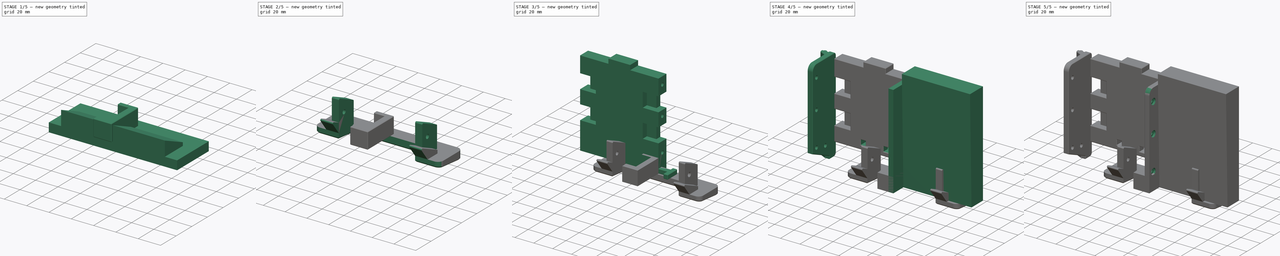
[diagram: build sequence overview — one tinted view per stage of 5, left to right]
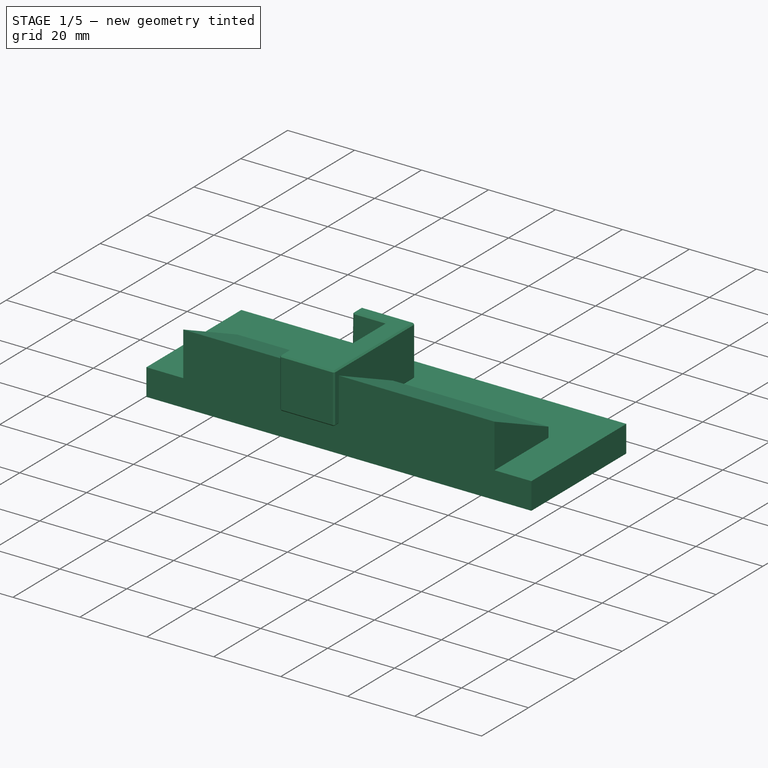
[diagram: stage 1 of 5 — iso view after this stage's code; geometry added in this stage tinted green]
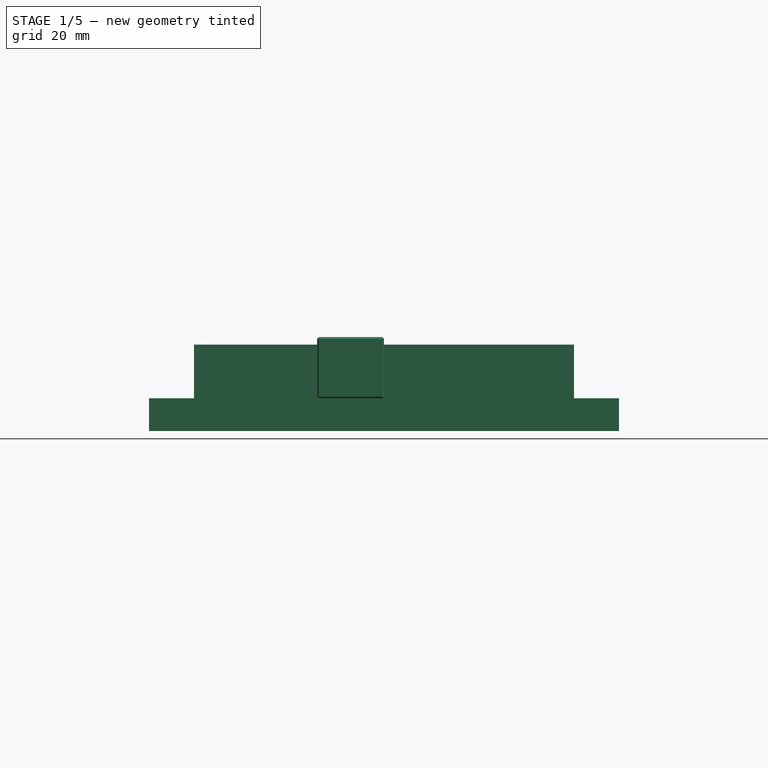
[diagram: stage 1 of 5 — front view after this stage's code; geometry added in this stage tinted green]
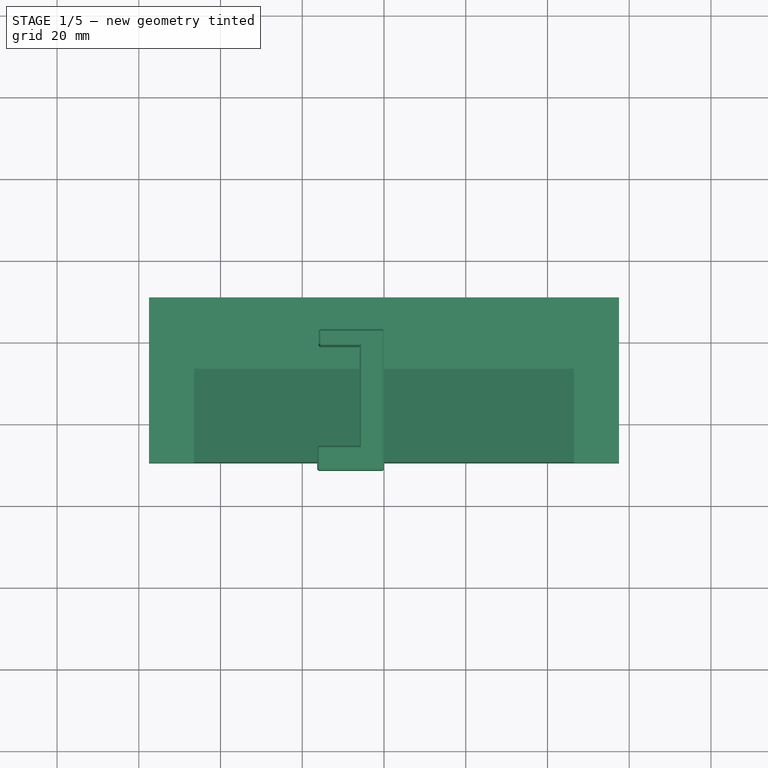
[diagram: stage 1 of 5 — top view after this stage's code; geometry added in this stage tinted green]
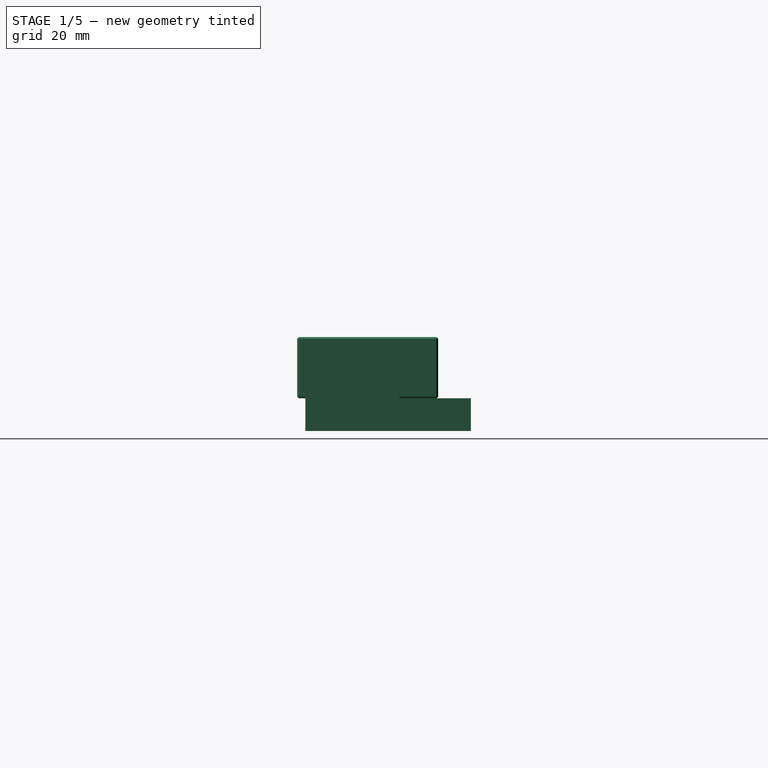
[diagram: stage 1 of 5 — right view after this stage's code; geometry added in this stage tinted green]
FCSTD DOCUMENT  (FreeCAD 0.19R24291 (Git))
Label: etc-tray
License: All rights reserved
LicenseURL: http://en.wikipedia.org/wiki/All_rights_reserved
objects: Sketcher::SketchObject×31, PartDesign::Pocket×20, PartDesign::Pad×11, PartDesign::Chamfer×8, PartDesign::Body×8, PartDesign::Fillet×5, Part::Feature×2, PartDesign::Plane×2, PartDesign::FeatureBase×2, Part::Mirroring×1, PartDesign::Mirrored×1
note: 135 computed .brp shape members not serialized (recipe doc carries the construction recipe); baked Part::Feature solids carry a one-line shape summary decoded from their .brp

FEATURE [PartDesign::Body] Body005004  label="clip-center"
  Group = -> [Sketch034,Pad010,Chamfer007]
  Origin = -> Origin007
  Placement = pos=(-41.5,-25,18) rot=(0,0,1;0rad)
  Tip = -> Chamfer007
FEATURE [Sketcher::SketchObject] Sketch018
  FullyConstrained = true
  MapMode = 5
  Support = -> [XY_Plane002]
  sketch-geometry (4):
    g0: LineSegment StartX=-57.5 StartY=11 StartZ=0 EndX=57.5 EndY=11 EndZ=0
    g1: LineSegment StartX=57.5 StartY=11 StartZ=0 EndX=57.5 EndY=-29.5 EndZ=0
    g2: LineSegment StartX=57.5 StartY=-29.5 StartZ=0 EndX=-57.5 EndY=-29.5 EndZ=0
    g3: LineSegment StartX=-57.5 StartY=-29.5 StartZ=0 EndX=-57.5 EndY=11 EndZ=0
  constraints (12):
    c: Coincident(g0,g1)
    c: Coincident(g1,g2)
    c: Coincident(g2,g3)
    c: Coincident(g3,g0)
    c: Horizontal(g0)
    c: Horizontal(g2)
    c: Vertical(g1)
    c: Vertical(g3)
    c: DistanceX(g0,g0) = 115
    c: DistanceX(g0,g-1) = 57.5
    c: DistanceY(g-1,g0) = 11
    c: DistanceY(g2,g-1) = 29.5
FEATURE [PartDesign::Pad] Pad004
  Direction = (1,1,1)
  Length = 8
  Length2 = 100
  Profile = -> Sketch018
  Reversed = true
  Type = 0
FEATURE [PartDesign::Plane] DatumPlane
  Length = 62.8998
  MapMode = 5
  Placement = pos=(0,0,0) rot=(0.57735,0.57735,0.57735;2.0944rad)
  ResizeMode = 0
  Support = -> [YZ_Plane002]
  Width = 63.665
FEATURE [Sketcher::SketchObject] Sketch019
  FullyConstrained = true
  MapMode = 5
  Placement = pos=(0,0,0) rot=(0.57735,0.57735,0.57735;2.0944rad)
  Support = -> [DatumPlane]
  sketch-geometry (7):
    g0: LineSegment StartX=-29.5 StartY=0 StartZ=0 EndX=-29.5 EndY=13.12 EndZ=0
    g1: LineSegment StartX=-29.5 StartY=13.12 StartZ=0 EndX=-6.5 EndY=3 EndZ=0
    g2: LineSegment StartX=-6.5 StartY=3 StartZ=0 EndX=-6.5 EndY=0 EndZ=0
    g3: LineSegment StartX=-6.5 StartY=0 StartZ=0 EndX=-29.5 EndY=0 EndZ=0
    g4: LineSegment StartX=-29.5 StartY=0 StartZ=0 EndX=-31.5 EndY=0 EndZ=0
    g5: LineSegment StartX=-31.5 StartY=0 StartZ=0 EndX=-31.5 EndY=14 EndZ=0
    g6: LineSegment StartX=-31.5 StartY=14 StartZ=0 EndX=-29.5 EndY=13.12 EndZ=0
  constraints (20):
    c: PointOnObject(g0,g-1)
    c: Vertical(g0)
    c: Coincident(g0,g1)
    c: Coincident(g1,g2)
    c: PointOnObject(g2,g-1)
    c: Vertical(g2)
    c: Coincident(g2,g3)
    c: Coincident(g3,g0)
    c: DistanceY(g2,g2) = 3
    c: Coincident(g4,g0)
    c: PointOnObject(g4,g-1)
    c: Coincident(g5,g4)
    c: Vertical(g5)
    c: Coincident(g6,g5)
    c: Coincident(g6,g0)
    c: Parallel(g6,g1)
    c: DistanceY(g5,g5) = 14
    c: DistanceX(g4,g2) = 25
    c: DistanceX(g2,g-1) = 6.5
    c: DistanceX(g0,g2) = 23
FEATURE [PartDesign::Pad] Pad005
  BaseFeature = -> Pad004
  Direction = (1,1,1)
  Length = 93
  Length2 = 100
  Midplane = true
  Profile = -> Sketch019
  Type = 0
FEATURE [PartDesign::Body] Body003  label="front"
  Group = -> [Sketch018,Pad004,DatumPlane,Sketch019,Pad005,DatumPlane001,Sketch020,Pad006,Mirrored,Sketch021,Pocket014,Sketch029,Pocket020,Sketch030,Pocket021,Fillet003,Fillet004,Sketch035,Pocket024,Chamfer008,Chamfer009]
  Origin = -> Origin002
  Placement = pos=(-41.5,0,0) rot=(0,0,1;0rad)
  Tip = -> Chamfer009
FEATURE [Part::Feature] Body005005  label="side-clip-base001"
  shape: bbox 16.35 x 34.5 x 15 mm, 10 faces (baked)
FEATURE [PartDesign::FeatureBase] BaseFeature
  BaseFeature = -> Body005005
FEATURE [PartDesign::FeatureBase] BaseFeature001
  BaseFeature = -> Body005005
FEATURE [Sketcher::SketchObject] Sketch036
  ExternalGeometry = -> [BaseFeature001]
  FullyConstrained = true
  MapMode = 5
  Placement = pos=(-16,0,0) rot=(0.57735,-0.57735,-0.57735;2.0944rad)
  Support = -> [BaseFeature001]
  sketch-geometry (4):
    g0: LineSegment StartX=1.2 StartY=0 StartZ=0 EndX=2.5 EndY=0 EndZ=0
    g1: LineSegment StartX=2.5 StartY=0 StartZ=0 EndX=2.5 EndY=15 EndZ=0
    g2: LineSegment StartX=2.5 StartY=15 StartZ=0 EndX=0.85 EndY=15 EndZ=0
    g3: LineSegment StartX=0.85 StartY=15 StartZ=0 EndX=1.2 EndY=0 EndZ=0
  constraints (10):
    c: PointOnObject(g0,g-1)
    c: Coincident(g0,g-4)
    c: Coincident(g0,g1)
    c: Coincident(g1,g-4)
    c: Coincident(g1,g2)
    c: PointOnObject(g2,g-3)
    c: Coincident(g2,g3)
    c: Coincident(g3,g0)
    c: DistanceX(g2,g2) = 1.65
    c: DistanceX(g0,g0) = 1.3
FEATURE [PartDesign::Pocket] Pocket025
  BaseFeature = -> BaseFeature001
  Length = 0
  Length2 = 100
  Profile = -> Sketch036
  Refine = true
  Type = 3
  UpToFace = -> BaseFeature001 [Face2]
FEATURE [Sketcher::SketchObject] Sketch037
  ExternalGeometry = -> [BaseFeature]
  FullyConstrained = true
  MapMode = 5
  Placement = pos=(-16,0,0) rot=(0.57735,-0.57735,-0.57735;2.0944rad)
  Support = -> [BaseFeature]
  sketch-geometry (4):
    g0: LineSegment StartX=0.25 StartY=15 StartZ=0 EndX=0.45 EndY=0 EndZ=0
    g1: LineSegment StartX=0.45 StartY=0 StartZ=0 EndX=2.5 EndY=0 EndZ=0
    g2: LineSegment StartX=2.5 StartY=0 StartZ=0 EndX=2.5 EndY=15 EndZ=0
    g3: LineSegment StartX=2.5 StartY=15 StartZ=0 EndX=0.25 EndY=15 EndZ=0
  constraints (10):
    c: PointOnObject(g0,g-3)
    c: PointOnObject(g0,g-1)
    c: Coincident(g0,g1)
    c: Coincident(g1,g-4)
    c: Coincident(g1,g2)
    c: Coincident(g2,g-4)
    c: Coincident(g2,g3)
    c: Coincident(g3,g0)
    c: DistanceX(g3,g3) = 2.25
    c: DistanceX(g1,g1) = 2.05
FEATURE [PartDesign::Pocket] Pocket026
  BaseFeature = -> BaseFeature
  Length = 0
  Length2 = 100
  Profile = -> Sketch037
  Refine = true
  Type = 3
  UpToFace = -> BaseFeature [Face2]
FEATURE [Sketcher::SketchObject] Sketch038
  FullyConstrained = false
  MapMode = 5
  Placement = pos=(0,3,0) rot=(0,0.707107,0.707107;3.14159rad)
  Support = -> [Pocket026]
  sketch-geometry (3):
    g0: LineSegment StartX=3 StartY=2 StartZ=0 EndX=2 EndY=3 EndZ=0
    g1: LineSegment StartX=2 StartY=3 StartZ=0 EndX=4 EndY=3 EndZ=0
    g2: LineSegment StartX=4 StartY=3 StartZ=0 EndX=3 EndY=2 EndZ=0
  constraints (4):
    c: Coincident(g0,g1)
    c: Horizontal(g1)
    c: Coincident(g1,g2)
    c: Coincident(g2,g0)
FEATURE [PartDesign::Pocket] Pocket027
  BaseFeature = -> Pocket026
  Length = 0.5
  Length2 = 100
  Profile = -> Sketch038
  Type = 0
FEATURE [Sketcher::SketchObject] Sketch039
  FullyConstrained = false
  MapMode = 5
  Placement = pos=(0,3,0) rot=(0,0.707107,0.707107;3.14159rad)
  Support = -> [Pocket025]
  sketch-geometry (6):
    g0: LineSegment StartX=3 StartY=2 StartZ=0 EndX=2 EndY=3 EndZ=0
    g1: LineSegment StartX=2 StartY=3 StartZ=0 EndX=4 EndY=3 EndZ=0
    g2: LineSegment StartX=4 StartY=3 StartZ=0 EndX=3 EndY=2 EndZ=0
    g3: LineSegment StartX=3 StartY=4 StartZ=0 EndX=2 EndY=5 EndZ=0
    g4: LineSegment StartX=2 StartY=5 StartZ=0 EndX=4 EndY=5 EndZ=0
    g5: LineSegment StartX=4 StartY=5 StartZ=0 EndX=3 EndY=4 EndZ=0
  constraints (8):
    c: Coincident(g0,g1)
    c: Horizontal(g1)
    c: Coincident(g1,g2)
    c: Coincident(g2,g0)
    c: Coincident(g3,g4)
    c: Horizontal(g4)
    c: Coincident(g4,g5)
    c: Coincident(g5,g3)
FEATURE [PartDesign::Pocket] Pocket028
  BaseFeature = -> Pocket025
  Length = 0.05
  Length2 = 100
  Profile = -> Sketch039
  Type = 0
FEATURE [PartDesign::Chamfer] Chamfer010
  Angle = 45
  Base = -> Pocket028 [Face10,Edge13,Edge25,Edge19,Face2,Face5,Face4,Face6]
  BaseFeature = -> Pocket028
  ChamferType = 0
  FlipDirection = false
  Size = 0.4
  Size2 = 1
  SupportTransform = false
FEATURE [PartDesign::Body] Body005007  label="clip-front"
  BaseFeature = -> Body005005
  Group = -> [BaseFeature001,Sketch036,Pocket025,Sketch039,Pocket028,Chamfer010]
  Origin = -> Origin009
  Placement = pos=(0,0,29.15) rot=(0,0,1;0rad)
  Tip = -> Chamfer010
FEATURE [PartDesign::Chamfer] Chamfer011
  Angle = 45
  Base = -> Pocket027 [Face8,Face4,Face6,Face5,Face2,Face10]
  BaseFeature = -> Pocket027
  ChamferType = 0
  FlipDirection = false
  Size = 0.4
  Size2 = 1
  SupportTransform = false
FEATURE [PartDesign::Body] Body005006  label="clip-back"
  BaseFeature = -> Body005005
  Group = -> [BaseFeature,Sketch037,Pocket026,Sketch038,Pocket027,Chamfer011]
  Origin = -> Origin008
  Placement = pos=(0,0,58.85) rot=(0,0,1;0rad)
  Tip = -> Chamfer011
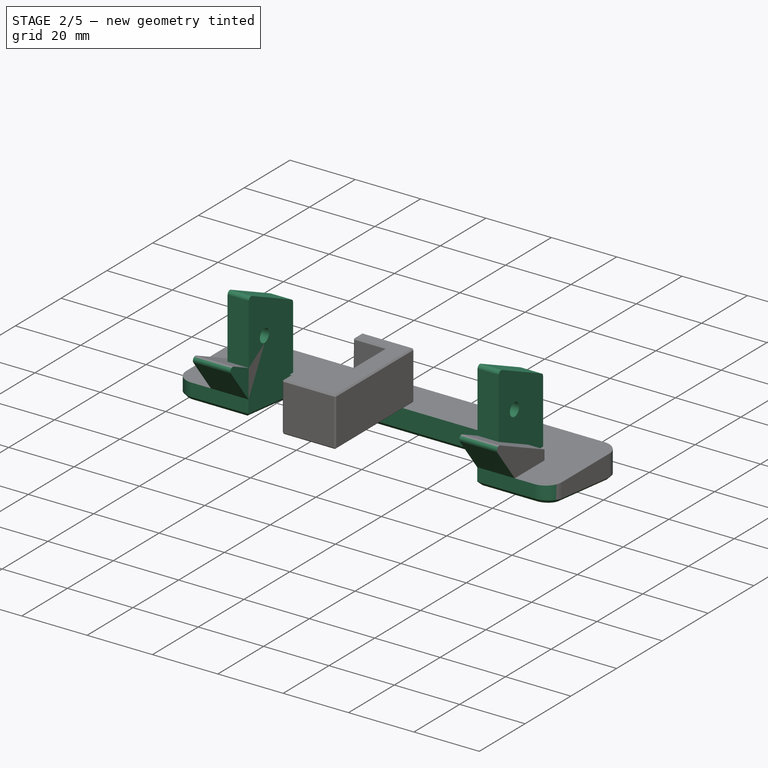
[diagram: stage 2 of 5 — iso view after this stage's code; geometry added in this stage tinted green]
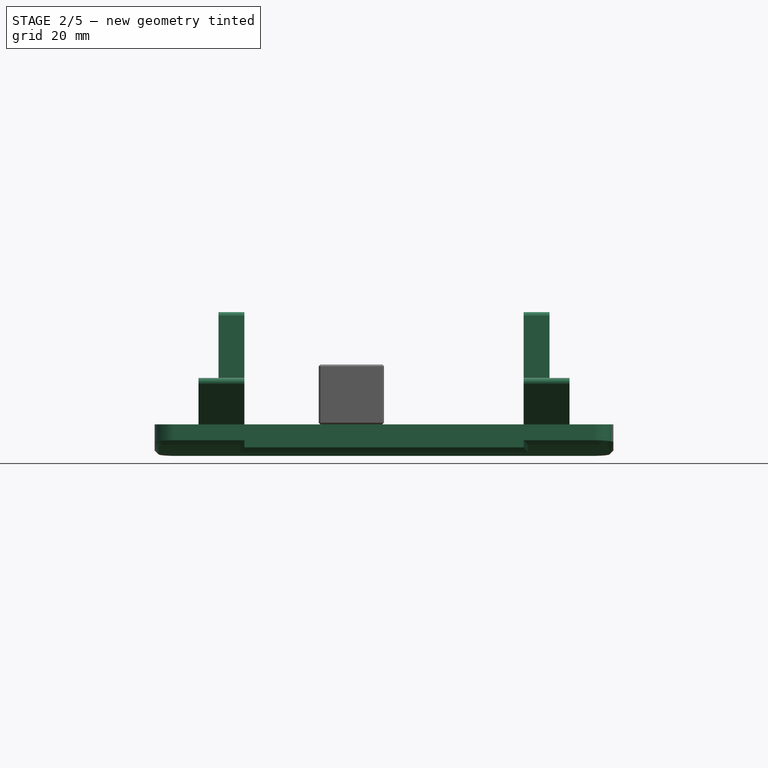
[diagram: stage 2 of 5 — front view after this stage's code; geometry added in this stage tinted green]
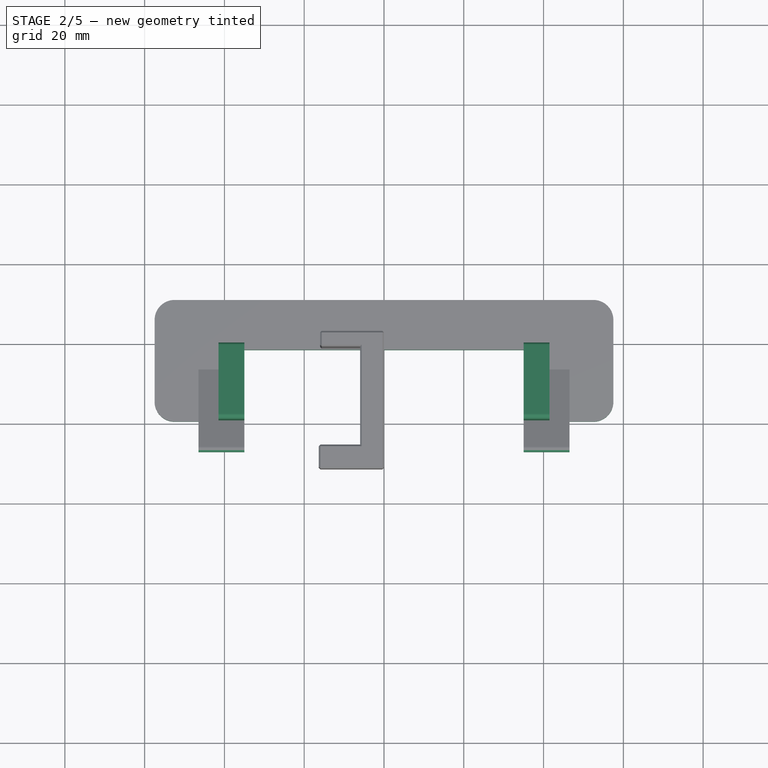
[diagram: stage 2 of 5 — top view after this stage's code; geometry added in this stage tinted green]
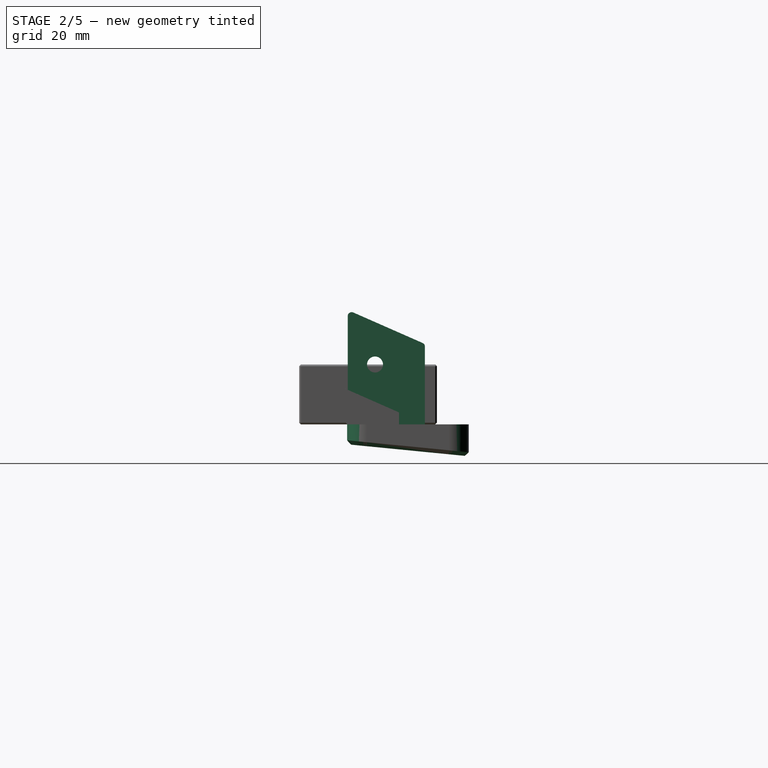
[diagram: stage 2 of 5 — right view after this stage's code; geometry added in this stage tinted green]
FEATURE [PartDesign::Plane] DatumPlane001
  AttachmentOffset = pos=(0,0,41.5) rot=(0,0,1;0rad)
  Length = 62.8998
  MapMode = 5
  Placement = pos=(41.5,-9.2e-15,9.2e-15) rot=(0.57735,0.57735,0.57735;2.0944rad)
  ResizeMode = 0
  Support = -> [YZ_Plane002]
  Width = 63.665
FEATURE [Sketcher::SketchObject] Sketch020
  FullyConstrained = true
  MapMode = 5
  Placement = pos=(41.5,-9.2e-15,9.2e-15) rot=(0.57735,0.57735,0.57735;2.0944rad)
  Support = -> [DatumPlane001]
  sketch-geometry (11):
    g0: LineSegment StartX=-6.5 StartY=0 StartZ=0 EndX=-6.5 EndY=3 EndZ=0
    g1: LineSegment StartX=-6.5 StartY=3 StartZ=0 EndX=-31.5 EndY=14 EndZ=0
    g2: LineSegment StartX=-31.5 StartY=14 StartZ=0 EndX=-31.5 EndY=0 EndZ=0
    g3: LineSegment StartX=-31.5 StartY=0 StartZ=0 EndX=-6.5 EndY=0 EndZ=0
    g4: LineSegment StartX=-19.35 StartY=8.654 StartZ=0 EndX=-19.35 EndY=28.654 EndZ=0
    g5: LineSegment StartX=-19.35 StartY=28.654 StartZ=0 EndX=0 EndY=20.14 EndZ=0
    g6: LineSegment StartX=-6.5 StartY=3 StartZ=0 EndX=-19.35 EndY=8.654 EndZ=0
    g7: LineSegment StartX=-6.5 StartY=3 StartZ=0 EndX=-6.5 EndY=0 EndZ=0
    g8: LineSegment StartX=-6.5 StartY=0 StartZ=0 EndX=0 EndY=0 EndZ=0
    g9: LineSegment StartX=0 StartY=0 StartZ=0 EndX=0 EndY=20.14 EndZ=0
    g10: Circle CenterX=-12.5 CenterY=15 CenterZ=0 NormalX=0 NormalY=0 NormalZ=1 AngleXU=0 Radius=2
  constraints (32):
    c: PointOnObject(g0,g-1)
    c: Coincident(g0,g1)
    c: Coincident(g1,g2)
    c: PointOnObject(g2,g-1)
    c: Vertical(g2)
    c: Coincident(g2,g3)
    c: Coincident(g3,g0)
    c: Vertical(g0)
    c: DistanceY(g0,g0) = 3
    c: DistanceY(g2,g2) = 14
    c: DistanceX(g3,g3) = 25
    c: DistanceX(g0,g-1) = 6.5
    c: PointOnObject(g4,g1)
    c: Vertical(g4)
    c: Coincident(g4,g5)
    c: Coincident(g6,g4)
    c: Coincident(g6,g7)
    c: PointOnObject(g7,g3)
    c: Vertical(g7)
    c: Coincident(g7,g8)
    c: Coincident(g8,g-1)
    c: Coincident(g8,g9)
    c: PointOnObject(g9,g-2)
    c: Coincident(g5,g9)
    c: DistanceX(g8,g8) = 6.5
    c: DistanceY(g7,g7) = 3
    c: DistanceX(g4,g7) = 12.85
    c: Parallel(g5,g6)
    c: DistanceY(g4,g4) = 20
    c: Radius(g10) = 2
    c: DistanceX(g10,g8) = 12.5
    c: DistanceY(g8,g10) = 15
FEATURE [PartDesign::Pad] Pad006
  BaseFeature = -> Pad005
  Direction = (1,1,1)
  Length = 6.5
  Length2 = 100
  Profile = -> Sketch020
  Reversed = true
  Type = 0
FEATURE [PartDesign::Mirrored] Mirrored
  BaseFeature = -> Pad006
  MirrorPlane = -> YZ_Plane002
  Originals = -> [Pad006]
FEATURE [Sketcher::SketchObject] Sketch021
  FullyConstrained = true
  MapMode = 5
  Placement = pos=(0,0,-8) rot=(1,0,0;3.14159rad)
  Support = -> [Mirrored]
  sketch-geometry (4):
    g0: LineSegment StartX=-35 StartY=19.5 StartZ=0 EndX=35 EndY=19.5 EndZ=0
    g1: LineSegment StartX=35 StartY=19.5 StartZ=0 EndX=35 EndY=1.5 EndZ=0
    g2: LineSegment StartX=35 StartY=1.5 StartZ=0 EndX=-35 EndY=1.5 EndZ=0
    g3: LineSegment StartX=-35 StartY=1.5 StartZ=0 EndX=-35 EndY=19.5 EndZ=0
  constraints (12):
    c: Coincident(g0,g1)
    c: Coincident(g1,g2)
    c: Coincident(g2,g3)
    c: Coincident(g3,g0)
    c: Horizontal(g0)
    c: Horizontal(g2)
    c: Vertical(g1)
    c: Vertical(g3)
    c: DistanceX(g0,g0) = 70
    c: DistanceX(g0,g-1) = 35
    c: DistanceY(g3,g3) = 18
    c: DistanceY(g-1,g0) = 19.5
FEATURE [PartDesign::Pocket] Pocket014
  BaseFeature = -> Mirrored
  Length = 5
  Length2 = 100
  Profile = -> Sketch021
  Type = 1
FEATURE [Sketcher::SketchObject] Sketch029
  ExternalGeometry = -> [Pocket014]
  FullyConstrained = true
  MapMode = 5
  Placement = pos=(57.5,0,0) rot=(0.57735,0.57735,0.57735;2.0944rad)
  Support = -> [Pocket014]
  sketch-geometry (4):
    g0: LineSegment StartX=-29.5 StartY=13.12 StartZ=0 EndX=-29.5 EndY=-8 EndZ=0
    g1: LineSegment StartX=-29.5 StartY=-8 StartZ=0 EndX=-19.5 EndY=-8 EndZ=0
    g2: LineSegment StartX=-19.5 StartY=-8 StartZ=0 EndX=-19.5 EndY=0 EndZ=0
    g3: LineSegment StartX=-19.5 StartY=0 StartZ=0 EndX=-29.5 EndY=13.12 EndZ=0
  constraints (10):
    c: PointOnObject(g1,g-3)
    c: Coincident(g0,g1)
    c: Coincident(g0,g-3)
    c: Coincident(g1,g2)
    c: PointOnObject(g2,g-1)
    c: Vertical(g2)
    c: Coincident(g2,g3)
    c: Coincident(g3,g0)
    c: DistanceX(g1,g1) = 10
    c: Coincident(g0,g-4)
FEATURE [PartDesign::Pocket] Pocket020
  BaseFeature = -> Pocket014
  Length = 5
  Length2 = 100
  Profile = -> Sketch029
  Type = 1
FEATURE [Sketcher::SketchObject] Sketch030
  ExternalGeometry = -> [Pocket020]
  FullyConstrained = true
  MapMode = 5
  Placement = pos=(0,-19.5,0) rot=(0,0.707107,0.707107;3.14159rad)
  Support = -> [Pocket020]
  sketch-geometry (4):
    g0: LineSegment StartX=-35 StartY=0 StartZ=0 EndX=35 EndY=0 EndZ=0
    g1: LineSegment StartX=35 StartY=0 StartZ=0 EndX=35 EndY=13.12 EndZ=0
    g2: LineSegment StartX=35 StartY=13.12 StartZ=0 EndX=-35 EndY=13.12 EndZ=0
    g3: LineSegment StartX=-35 StartY=13.12 StartZ=0 EndX=-35 EndY=0 EndZ=0
  constraints (11):
    c: Coincident(g0,g1)
    c: Coincident(g1,g2)
    c: Coincident(g2,g3)
    c: Coincident(g3,g0)
    c: Horizontal(g0)
    c: Horizontal(g2)
    c: Vertical(g1)
    c: Vertical(g3)
    c: Coincident(g0,g-3)
    c: PointOnObject(g1,g-5)
    c: Vertical(g0,g-4)
FEATURE [PartDesign::Pocket] Pocket021
  BaseFeature = -> Pocket020
  Length = 5
  Length2 = 100
  Profile = -> Sketch030
  Refine = true
  Type = 1
FEATURE [PartDesign::Fillet] Fillet003
  Base = -> Pocket021 [Edge7,Edge1,Edge9,Edge2]
  BaseFeature = -> Pocket021
  Radius = 5
  SupportTransform = false
FEATURE [PartDesign::Fillet] Fillet004
  Base = -> Fillet003 [Edge87,Edge85,Edge81,Edge83,Edge51,Edge70]
  BaseFeature = -> Fillet003
  Radius = 1
  SupportTransform = false
FEATURE [Sketcher::SketchObject] Sketch035
  ExternalGeometry = -> [Fillet004]
  FullyConstrained = true
  MapMode = 5
  Placement = pos=(-57.5,0,0) rot=(0.57735,-0.57735,-0.57735;2.0944rad)
  Support = -> [Fillet004]
  sketch-geometry (3):
    g0: LineSegment StartX=19.5 StartY=-5 StartZ=0 EndX=-11 EndY=-8 EndZ=0
    g1: LineSegment StartX=-11 StartY=-8 StartZ=0 EndX=19.5 EndY=-8 EndZ=0
    g2: LineSegment StartX=19.5 StartY=-8 StartZ=0 EndX=19.5 EndY=-5 EndZ=0
  constraints (7):
    c: PointOnObject(g0,g-6)
    c: Coincident(g0,g-5)
    c: Coincident(g0,g1)
    c: Coincident(g1,g-6)
    c: Coincident(g1,g2)
    c: Coincident(g2,g0)
    c: DistanceY(g2,g2) = 3
FEATURE [PartDesign::Pocket] Pocket024
  BaseFeature = -> Fillet004
  Length = 5
  Length2 = 100
  Profile = -> Sketch035
  Type = 1
FEATURE [PartDesign::Chamfer] Chamfer008
  Angle = 45
  Base = -> Pocket024 [Face26]
  BaseFeature = -> Pocket024
  ChamferType = 0
  FlipDirection = false
  Size = 1
  Size2 = 1
  SupportTransform = false
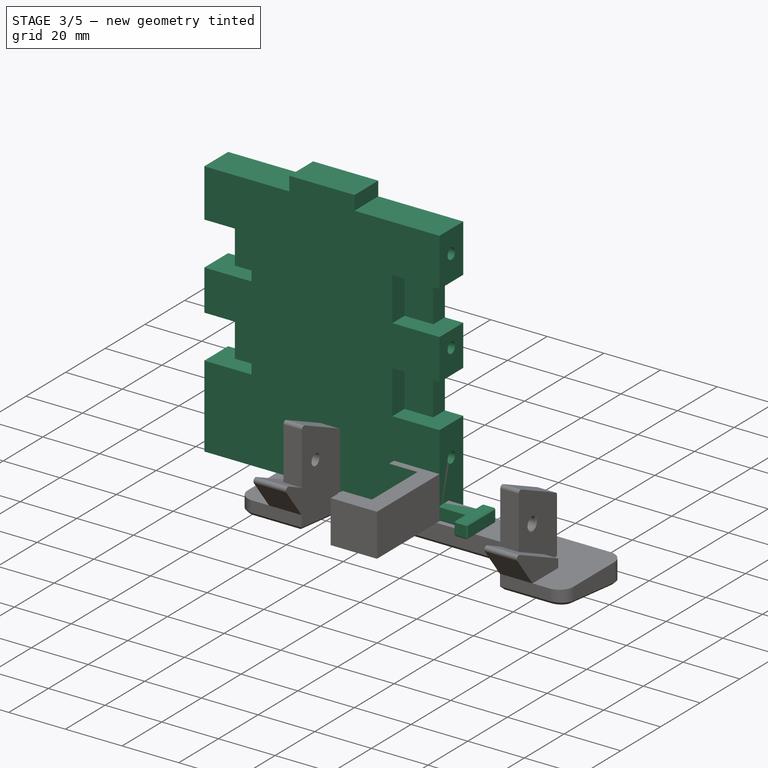
[diagram: stage 3 of 5 — iso view after this stage's code; geometry added in this stage tinted green]
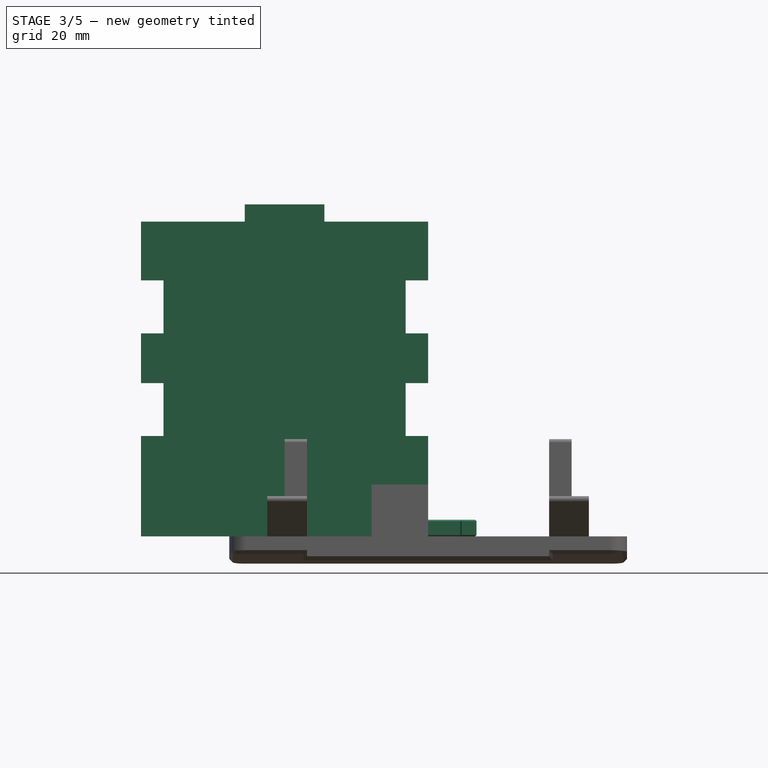
[diagram: stage 3 of 5 — front view after this stage's code; geometry added in this stage tinted green]
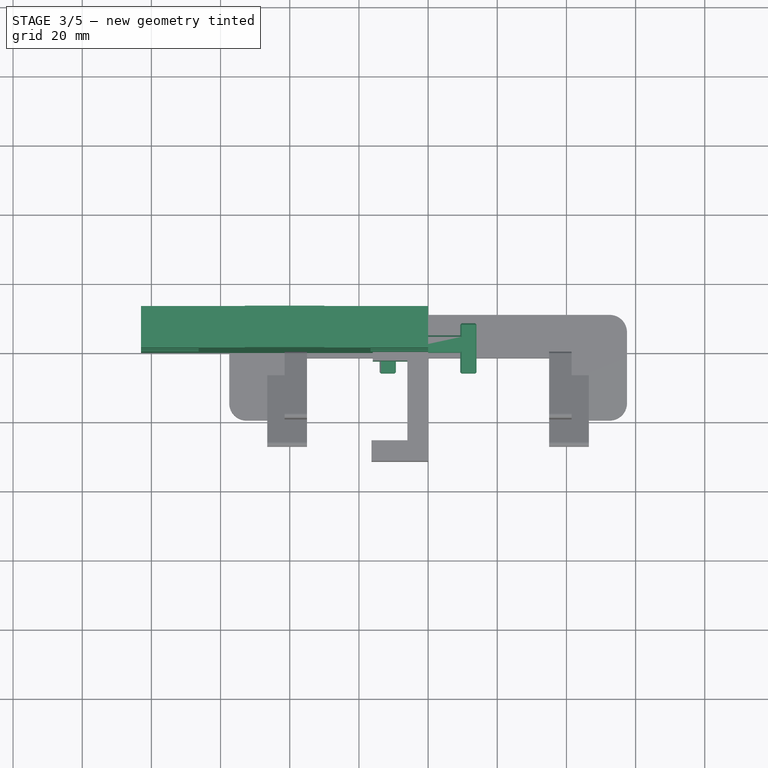
[diagram: stage 3 of 5 — top view after this stage's code; geometry added in this stage tinted green]
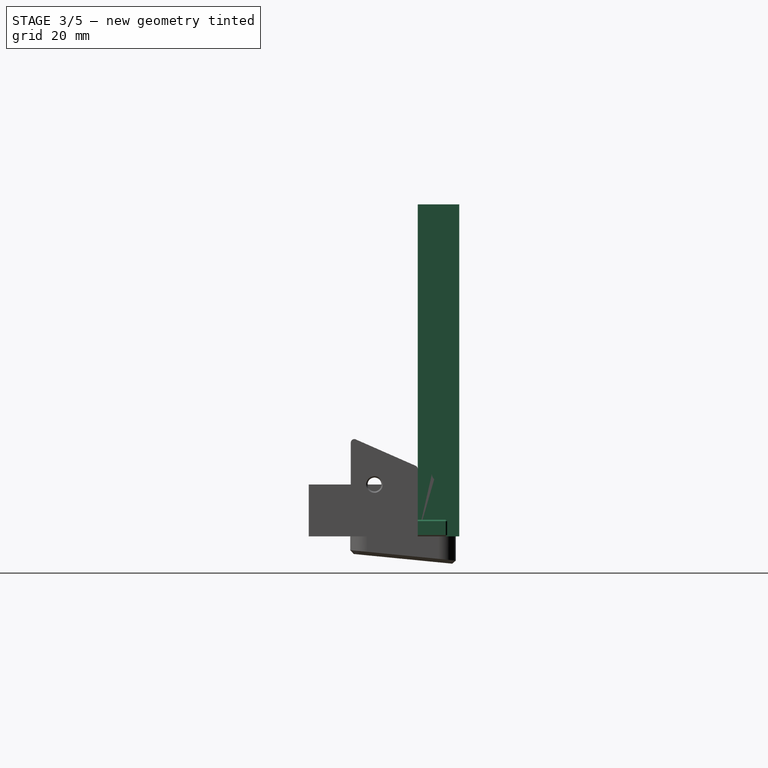
[diagram: stage 3 of 5 — right view after this stage's code; geometry added in this stage tinted green]
FEATURE [Sketcher::SketchObject] Sketch005
  FullyConstrained = true
  MapMode = 5
  Placement = pos=(0,0,0) rot=(1,0,0;1.5708rad)
  Support = -> [XZ_Plane001]
  sketch-geometry (4):
    g0: LineSegment StartX=0 StartY=0 StartZ=0 EndX=-83 EndY=0 EndZ=0
    g1: LineSegment StartX=-83 StartY=0 StartZ=0 EndX=-83 EndY=96 EndZ=0
    g2: LineSegment StartX=-83 StartY=96 StartZ=0 EndX=0 EndY=96 EndZ=0
    g3: LineSegment StartX=0 StartY=96 StartZ=0 EndX=0 EndY=0 EndZ=0
  constraints (11):
    c: Coincident(g0,g1)
    c: Coincident(g1,g2)
    c: Coincident(g2,g3)
    c: Coincident(g3,g0)
    c: Horizontal(g0)
    c: Horizontal(g2)
    c: Vertical(g1)
    c: Vertical(g3)
    c: Coincident(g0,g-1)
    c: DistanceY(g1,g1) = 96
    c: DistanceX(g2,g2) = 83
FEATURE [PartDesign::Pad] Pad003
  Direction = (1,1,1)
  Length = 12
  Length2 = 100
  Placement = pos=(0,0,0) rot=(1,0,0;1.5708rad)
  Profile = -> Sketch005
  Reversed = true
  Type = 0
FEATURE [Sketcher::SketchObject] Sketch006
  FullyConstrained = true
  MapMode = 5
  Placement = pos=(0,0,0) rot=(0.707107,0,0.707107;3.14159rad)
  Support = -> [Pad003]
  sketch-geometry (3):
    g0: Circle CenterX=18 CenterY=-6 CenterZ=0 NormalX=0 NormalY=0 NormalZ=1 AngleXU=0 Radius=1.9
    g1: Circle CenterX=53 CenterY=-6 CenterZ=0 NormalX=0 NormalY=0 NormalZ=1 AngleXU=0 Radius=1.9
    g2: Circle CenterX=83 CenterY=-6 CenterZ=0 NormalX=0 NormalY=0 NormalZ=1 AngleXU=0 Radius=1.9
  constraints (9):
    c: Horizontal(g0,g1)
    c: Horizontal(g1,g2)
    c: DistanceY(g0,g-1) = 6
    c: DistanceX(g0,g1) = 35
    c: DistanceX(g1,g2) = 30
    c: Equal(g0,g1)
    c: Equal(g1,g2)
    c: Radius(g2) = 1.9
    c: DistanceX(g-1,g0) = 18
FEATURE [PartDesign::Pocket] Pocket002
  BaseFeature = -> Pad003
  Length = 5
  Length2 = 100
  Placement = pos=(0,0,0) rot=(1,0,0;1.5708rad)
  Profile = -> Sketch006
  Type = 1
FEATURE [Sketcher::SketchObject] Sketch007
  ExternalGeometry = -> [Pocket002]
  FullyConstrained = true
  MapMode = 5
  Placement = pos=(0,12,-5.3e-15) rot=(-1,0,0;1.5708rad)
  Support = -> [Pocket002]
  sketch-geometry (8):
    g0: LineSegment StartX=-83 StartY=-96 StartZ=0 EndX=-53 EndY=-96 EndZ=0
    g1: LineSegment StartX=-53 StartY=-96 StartZ=0 EndX=-53 EndY=-91 EndZ=0
    g2: LineSegment StartX=-53 StartY=-91 StartZ=0 EndX=-83 EndY=-91 EndZ=0
    g3: LineSegment StartX=-83 StartY=-91 StartZ=0 EndX=-83 EndY=-96 EndZ=0
    g4: LineSegment StartX=0 StartY=-96 StartZ=0 EndX=-30 EndY=-96 EndZ=0
    g5: LineSegment StartX=-30 StartY=-96 StartZ=0 EndX=-30 EndY=-91 EndZ=0
    g6: LineSegment StartX=-30 StartY=-91 StartZ=0 EndX=0 EndY=-91 EndZ=0
    g7: LineSegment StartX=0 StartY=-91 StartZ=0 EndX=0 EndY=-96 EndZ=0
  constraints (22):
    c: Coincident(g0,g1)
    c: Coincident(g1,g2)
    c: Coincident(g2,g3)
    c: Coincident(g3,g0)
    c: Horizontal(g0)
    c: Horizontal(g2)
    c: Vertical(g1)
    c: Vertical(g3)
    c: Coincident(g0,g-4)
    c: Coincident(g4,g5)
    c: Coincident(g5,g6)
    c: Coincident(g6,g7)
    c: Coincident(g7,g4)
    c: Horizontal(g4)
    c: Horizontal(g6)
    c: Vertical(g5)
    c: Vertical(g7)
    c: Coincident(g4,g-4)
    c: Horizontal(g1,g5)
    c: DistanceY(g3,g3) = 5
    c: DistanceX(g2,g2) = 30
    c: DistanceX(g6,g6) = 30
FEATURE [PartDesign::Pocket] Pocket003
  BaseFeature = -> Pocket002
  Length = 5
  Length2 = 100
  Placement = pos=(0,0,0) rot=(1,0,0;1.5708rad)
  Profile = -> Sketch007
  Type = 1
FEATURE [Sketcher::SketchObject] Sketch009
  ExternalGeometry = -> [Pocket003]
  FullyConstrained = true
  MapMode = 5
  Placement = pos=(0,12,-5.3e-15) rot=(-1,0,0;1.5708rad)
  Support = -> [Pocket003]
  sketch-geometry (16):
    g0: LineSegment StartX=-83 StartY=-29 StartZ=0 EndX=-76.5 EndY=-29 EndZ=0
    g1: LineSegment StartX=-76.5 StartY=-29 StartZ=0 EndX=-76.5 EndY=-44.3 EndZ=0
    g2: LineSegment StartX=-76.5 StartY=-44.3 StartZ=0 EndX=-83 EndY=-44.3 EndZ=0
    g3: LineSegment StartX=-83 StartY=-44.3 StartZ=0 EndX=-83 EndY=-29 EndZ=0
    g4: LineSegment StartX=-83 StartY=-58.7 StartZ=0 EndX=-76.5 EndY=-58.7 EndZ=0
    g5: LineSegment StartX=-76.5 StartY=-58.7 StartZ=0 EndX=-76.5 EndY=-74 EndZ=0
    g6: LineSegment StartX=-76.5 StartY=-74 StartZ=0 EndX=-83 EndY=-74 EndZ=0
    g7: LineSegment StartX=-83 StartY=-74 StartZ=0 EndX=-83 EndY=-58.7 EndZ=0
    g8: LineSegment StartX=0 StartY=-29 StartZ=0 EndX=-6.5 EndY=-29 EndZ=0
    g9: LineSegment StartX=-6.5 StartY=-29 StartZ=0 EndX=-6.5 EndY=-44.3 EndZ=0
    g10: LineSegment StartX=-6.5 StartY=-44.3 StartZ=0 EndX=0 EndY=-44.3 EndZ=0
    g11: LineSegment StartX=0 StartY=-44.3 StartZ=0 EndX=0 EndY=-29 EndZ=0
    g12: LineSegment StartX=0 StartY=-58.7 StartZ=0 EndX=-6.5 EndY=-58.7 EndZ=0
    g13: LineSegment StartX=-6.5 StartY=-58.7 StartZ=0 EndX=-6.5 EndY=-74 EndZ=0
    g14: LineSegment StartX=-6.5 StartY=-74 StartZ=0 EndX=0 EndY=-74 EndZ=0
    g15: LineSegment StartX=0 StartY=-74 StartZ=0 EndX=0 EndY=-58.7 EndZ=0
  constraints (48):
    c: Coincident(g0,g1)
    c: Coincident(g1,g2)
    c: Coincident(g2,g3)
    c: Coincident(g3,g0)
    c: Horizontal(g0)
    c: Horizontal(g2)
    c: Vertical(g1)
    c: Vertical(g3)
    c: PointOnObject(g0,g-3)
    c: Coincident(g4,g5)
    c: Coincident(g5,g6)
    c: Coincident(g6,g7)
    c: Coincident(g7,g4)
    c: Horizontal(g4)
    c: Horizontal(g6)
    c: Vertical(g5)
    c: Vertical(g7)
    c: PointOnObject(g4,g-3)
    c: Coincident(g8,g9)
    c: Coincident(g9,g10)
    c: Coincident(g10,g11)
    c: Coincident(g11,g8)
    c: Horizontal(g8)
    c: Horizontal(g10)
    c: Vertical(g9)
    c: Vertical(g11)
    c: PointOnObject(g8,g-4)
    c: Coincident(g12,g13)
    c: Coincident(g13,g14)
    c: Coincident(g14,g15)
    c: Coincident(g15,g12)
    c: Horizontal(g12)
    c: Horizontal(g14)
    c: Vertical(g13)
    c: Vertical(g15)
    c: PointOnObject(g12,g-4)
    c: Vertical(g4,g1)
    c: Vertical(g12,g9)
    c: Horizontal(g1,g9)
    c: Horizontal(g0,g8)
    c: Horizontal(g4,g12)
    c: Horizontal(g5,g13)
    c: DistanceX(g0,g0) = 6.5
    c: DistanceX(g8,g8) = 6.5
    c: DistanceY(g8,g-1) = 29
    c: DistanceY(g9,g9) = 15.3
    c: DistanceY(g12,g10) = 14.4
    c: DistanceY(g13,g13) = 15.3
FEATURE [PartDesign::Pocket] Pocket005
  BaseFeature = -> Pocket003
  Length = 5
  Length2 = 100
  Placement = pos=(0,0,0) rot=(1,0,0;1.5708rad)
  Profile = -> Sketch009
  Type = 1
FEATURE [Sketcher::SketchObject] Sketch010
  ExternalGeometry = -> [Pocket005]
  FullyConstrained = true
  MapMode = 5
  Placement = pos=(0,1e-16,0) rot=(1,0,0;1.5708rad)
  Support = -> [Pocket005]
  sketch-geometry (16):
    g0: LineSegment StartX=-76.5 StartY=74 StartZ=0 EndX=-66.35 EndY=74 EndZ=0
    g1: LineSegment StartX=-66.35 StartY=74 StartZ=0 EndX=-66.35 EndY=58.7 EndZ=0
    g2: LineSegment StartX=-66.35 StartY=58.7 StartZ=0 EndX=-76.5 EndY=58.7 EndZ=0
    g3: LineSegment StartX=-76.5 StartY=58.7 StartZ=0 EndX=-76.5 EndY=74 EndZ=0
    g4: LineSegment StartX=-76.5 StartY=44.3 StartZ=0 EndX=-66.35 EndY=44.3 EndZ=0
    g5: LineSegment StartX=-66.35 StartY=44.3 StartZ=0 EndX=-66.35 EndY=29 EndZ=0
    g6: LineSegment StartX=-66.35 StartY=29 StartZ=0 EndX=-76.5 EndY=29 EndZ=0
    g7: LineSegment StartX=-76.5 StartY=29 StartZ=0 EndX=-76.5 EndY=44.3 EndZ=0
    g8: LineSegment StartX=-6.5 StartY=74 StartZ=0 EndX=-16.65 EndY=74 EndZ=0
    g9: LineSegment StartX=-16.65 StartY=74 StartZ=0 EndX=-16.65 EndY=58.7 EndZ=0
    g10: LineSegment StartX=-16.65 StartY=58.7 StartZ=0 EndX=-6.5 EndY=58.7 EndZ=0
    g11: LineSegment StartX=-6.5 StartY=58.7 StartZ=0 EndX=-6.5 EndY=74 EndZ=0
    g12: LineSegment StartX=-6.5 StartY=44.3 StartZ=0 EndX=-16.65 EndY=44.3 EndZ=0
    g13: LineSegment StartX=-16.65 StartY=44.3 StartZ=0 EndX=-16.65 EndY=29 EndZ=0
    g14: LineSegment StartX=-16.65 StartY=29 StartZ=0 EndX=-6.5 EndY=29 EndZ=0
    g15: LineSegment StartX=-6.5 StartY=29 StartZ=0 EndX=-6.5 EndY=44.3 EndZ=0
  constraints (44):
    c: Coincident(g0,g1)
    c: Coincident(g1,g2)
    c: Coincident(g2,g3)
    c: Coincident(g3,g0)
    c: Horizontal(g0)
    c: Horizontal(g2)
    c: Vertical(g1)
    c: Vertical(g3)
    c: Coincident(g0,g-3)
    c: Coincident(g4,g5)
    c: Coincident(g5,g6)
    c: Coincident(g6,g7)
    c: Coincident(g7,g4)
    c: Horizontal(g4)
    c: Horizontal(g6)
    c: Vertical(g5)
    c: Vertical(g7)
    c: Coincident(g4,g-4)
    c: Coincident(g8,g9)
    c: Coincident(g9,g10)
    c: Coincident(g10,g11)
    c: Coincident(g11,g8)
    c: Horizontal(g8)
    c: Horizontal(g10)
    c: Vertical(g9)
    c: Vertical(g11)
    c: Coincident(g8,g-6)
    c: Coincident(g12,g13)
    c: Coincident(g13,g14)
    c: Coincident(g14,g15)
    c: Coincident(g15,g12)
    c: Horizontal(g12)
    c: Horizontal(g14)
    c: Vertical(g13)
    c: Vertical(g15)
    c: Coincident(g12,g-5)
    c: Horizontal(g1,g9)
    c: Horizontal(g9,g-6)
    c: Horizontal(g5,g13)
    c: Horizontal(g13,g-5)
    c: Vertical(g4,g1)
    c: Vertical(g12,g9)
    c: DistanceX(g0,g0) = 10.15
    c: DistanceX(g8,g8) = 10.15
FEATURE [PartDesign::Pocket] Pocket006
  BaseFeature = -> Pocket005
  Length = 6.15
  Length2 = 100
  Placement = pos=(0,0,0) rot=(1,0,0;1.5708rad)
  Profile = -> Sketch010
  Type = 0
FEATURE [PartDesign::Body] Body004  label="etc-mock"
  Group = -> [Sketch024,Pad007]
  Origin = -> Origin003
  Placement = pos=(-6.5,-19.5,-20) rot=(0,0,1;3.14159rad)
  Tip = -> Pad007
FEATURE [Sketcher::SketchObject] Sketch025
  FullyConstrained = true
  MapMode = 5
  Placement = pos=(0,12,-8e-15) rot=(-1,0,0;1.5708rad)
  Support = -> [Pocket006]
  sketch-geometry (4):
    g0: LineSegment StartX=-63 StartY=-10 StartZ=0 EndX=-20 EndY=-10 EndZ=0
    g1: LineSegment StartX=-20 StartY=-10 StartZ=0 EndX=-20 EndY=-90 EndZ=0
    g2: LineSegment StartX=-20 StartY=-90 StartZ=0 EndX=-63 EndY=-90 EndZ=0
    g3: LineSegment StartX=-63 StartY=-90 StartZ=0 EndX=-63 EndY=-10 EndZ=0
  constraints (12):
    c: Coincident(g0,g1)
    c: Coincident(g1,g2)
    c: Coincident(g2,g3)
    c: Coincident(g3,g0)
    c: Horizontal(g0)
    c: Horizontal(g2)
    c: Vertical(g1)
    c: Vertical(g3)
    c: DistanceX(g0,g0) = 43
    c: DistanceX(g0,g-1) = 20
    c: DistanceY(g0,g-1) = 10
    c: DistanceY(g1,g1) = 80
FEATURE [PartDesign::Pad] Pad008
  BaseFeature = -> Pocket006
  Direction = (1,1,1)
  Length = 10
  Length2 = 100
  Placement = pos=(0,0,0) rot=(1,0,0;1.5708rad)
  Profile = -> Sketch025
  Type = 3
  UpToFace = -> Pocket006 [Face4]
FEATURE [PartDesign::Body] Body001  label="mid"
  Group = -> [Sketch005,Pad003,Sketch006,Pocket002,Sketch007,Pocket003,Sketch009,Pocket005,Sketch010,Pocket006,Sketch025,Pad008,Sketch026,Pocket017,Sketch027,Pocket018,Sketch028,Pocket019,Chamfer]
  Origin = -> Origin001
  Placement = pos=(0,-31.5,0) rot=(0,0,1;0rad)
  Tip = -> Chamfer
FEATURE [Sketcher::SketchObject] Sketch031
  FullyConstrained = true
  MapMode = 5
  Support = -> [XY_Plane004]
  sketch-geometry (9):
    g0: LineSegment StartX=-16.35 StartY=-25.5 StartZ=0 EndX=-6 EndY=-25.5 EndZ=0
    g1: LineSegment StartX=-6 StartY=-25.5 StartZ=0 EndX=-6 EndY=-2.5 EndZ=0
    g2: LineSegment StartX=-6 StartY=-2.5 StartZ=0 EndX=-16 EndY=-2.5 EndZ=0
    g3: LineSegment StartX=-16 StartY=-2.5 StartZ=0 EndX=-16 EndY=3 EndZ=0
    g4: LineSegment StartX=-16 StartY=3 StartZ=0 EndX=0 EndY=3 EndZ=0
    g5: LineSegment StartX=0 StartY=3 StartZ=0 EndX=0 EndY=-31.5 EndZ=0
    g6: LineSegment StartX=0 StartY=-31.5 StartZ=0 EndX=-16.35 EndY=-31.5 EndZ=0
    g7: LineSegment StartX=-16.35 StartY=-31.5 StartZ=0 EndX=-16.35 EndY=-25.5 EndZ=0
    g8: GeomPoint X=-6 Y=-19.5 Z=0
  constraints (26):
    c: Horizontal(g0)
    c: Coincident(g0,g1)
    c: Vertical(g1)
    c: Coincident(g1,g2)
    c: Horizontal(g2)
    c: Coincident(g2,g3)
    c: Vertical(g3)
    c: Coincident(g3,g4)
    c: PointOnObject(g4,g-2)
    c: Horizontal(g4)
    c: Coincident(g4,g5)
    c: PointOnObject(g5,g-2)
    c: Coincident(g5,g6)
    c: Horizontal(g6)
    c: Coincident(g6,g7)
    c: Vertical(g7)
    c: Coincident(g7,g0)
    c: DistanceY(g7,g7) = 6
    c: DistanceX(g0,g5) = 6
    c: DistanceY(g5,g-1) = 31.5
    c: DistanceX(g6,g6) = 16.35
    c: PointOnObject(g8,g1)
    c: DistanceY(g5,g8) = 12
    c: DistanceY(g8,g1) = 17
    c: DistanceY(g-1,g4) = 3
    c: DistanceX(g2,g2) = 10
FEATURE [PartDesign::Pad] Pad009
  Direction = (1,1,1)
  Length = 15
  Length2 = 100
  Profile = -> Sketch031
  Type = 0
FEATURE [PartDesign::Body] Body005  label="side-clip-base"
  Group = -> [Sketch031,Pad009]
  Origin = -> Origin004
  Tip = -> Pad009
FEATURE [Sketcher::SketchObject] Sketch034
  FullyConstrained = true
  MapMode = 5
  Support = -> [XY_Plane007]
  sketch-geometry (12):
    g0: LineSegment StartX=-9.3 StartY=-6 StartZ=0 EndX=-9.3 EndY=0 EndZ=0
    g1: LineSegment StartX=-9.3 StartY=0 StartZ=0 EndX=9.3 EndY=0 EndZ=0
    g2: LineSegment StartX=9.3 StartY=0 StartZ=0 EndX=9.3 EndY=-6 EndZ=0
    g3: LineSegment StartX=9.3 StartY=-6 StartZ=0 EndX=14 EndY=-6 EndZ=0
    g4: LineSegment StartX=14 StartY=-6 StartZ=0 EndX=14 EndY=8.5 EndZ=0
    g5: LineSegment StartX=14 StartY=8.5 StartZ=0 EndX=9.3 EndY=8.5 EndZ=0
    g6: LineSegment StartX=9.3 StartY=8.5 StartZ=0 EndX=9.3 EndY=5 EndZ=0
    g7: LineSegment StartX=9.3 StartY=5 StartZ=0 EndX=-9.3 EndY=5 EndZ=0
    g8: LineSegment StartX=-9.3 StartY=5 StartZ=0 EndX=-9.3 EndY=8.5 EndZ=0
    g9: LineSegment StartX=-9.3 StartY=8.5 StartZ=0 EndX=-14 EndY=8.5 EndZ=0
    g10: LineSegment StartX=-14 StartY=8.5 StartZ=0 EndX=-14 EndY=-6 EndZ=0
    g11: LineSegment StartX=-14 StartY=-6 StartZ=0 EndX=-9.3 EndY=-6 EndZ=0
  constraints (36):
    c: PointOnObject(g0,g-1)
    c: Coincident(g0,g1)
    c: PointOnObject(g1,g-1)
    c: Coincident(g1,g2)
    c: Vertical(g2)
    c: Coincident(g2,g3)
    c: Horizontal(g3)
    c: Coincident(g3,g4)
    c: Vertical(g4)
    c: Coincident(g4,g5)
    c: Horizontal(g5)
    c: Coincident(g5,g6)
    c: Vertical(g6)
    c: Coincident(g6,g7)
    c: Horizontal(g7)
    c: Coincident(g7,g8)
    c: Vertical(g8)
    c: Coincident(g8,g9)
    c: Coincident(g9,g10)
    c: Vertical(g10)
    c: Coincident(g10,g11)
    c: Coincident(g11,g0)
    c: Horizontal(g9)
    c: Horizontal(g11)
    c: DistanceX(g9,g4) = 28
    c: DistanceX(g9,g9) = 4.7
    c: DistanceX(g5,g5) = 4.7
    c: DistanceX(g9,g-1) = 14
    c: Vertical(g0)
    c: Vertical(g0,g7)
    c: Vertical(g6,g1)
    c: DistanceY(g0,g7) = 5
    c: DistanceY(g8,g8) = 3.5
    c: Horizontal(g8,g5)
    c: DistanceY(g0,g0) = 6
    c: Horizontal(g2,g0)
FEATURE [PartDesign::Pad] Pad010
  Direction = (1,1,1)
  Length = 4.8
  Length2 = 100
  Profile = -> Sketch034
  Type = 0
FEATURE [PartDesign::Chamfer] Chamfer007
  Angle = 45
  Base = -> Pad010 [Face13,Face14,Face10,Face6,Face12,Face4]
  BaseFeature = -> Pad010
  ChamferType = 0
  FlipDirection = false
  Size = 0.4
  Size2 = 1
  SupportTransform = false
FEATURE [PartDesign::Chamfer] Chamfer009
  Angle = 45
  Base = -> Chamfer008 [Edge62,Edge119]
  BaseFeature = -> Chamfer008
  ChamferType = 0
  FlipDirection = false
  Size = 0.4
  Size2 = 1
  SupportTransform = false
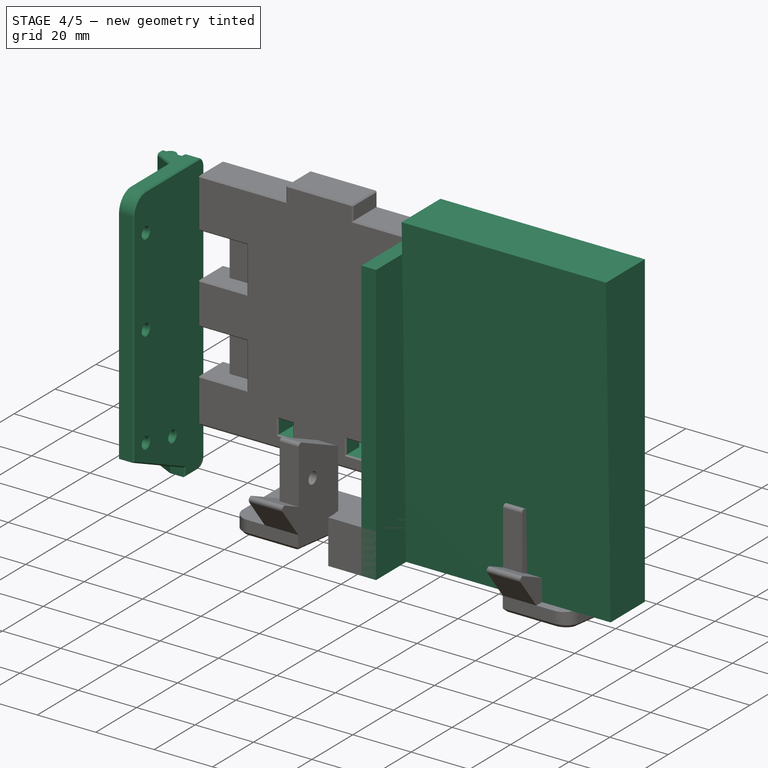
[diagram: stage 4 of 5 — iso view after this stage's code; geometry added in this stage tinted green]
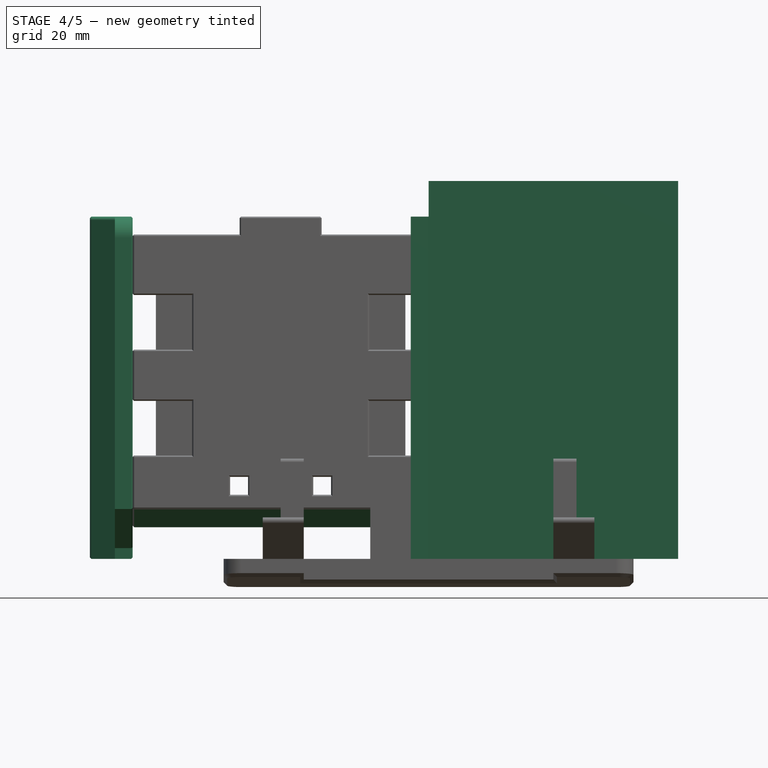
[diagram: stage 4 of 5 — front view after this stage's code; geometry added in this stage tinted green]
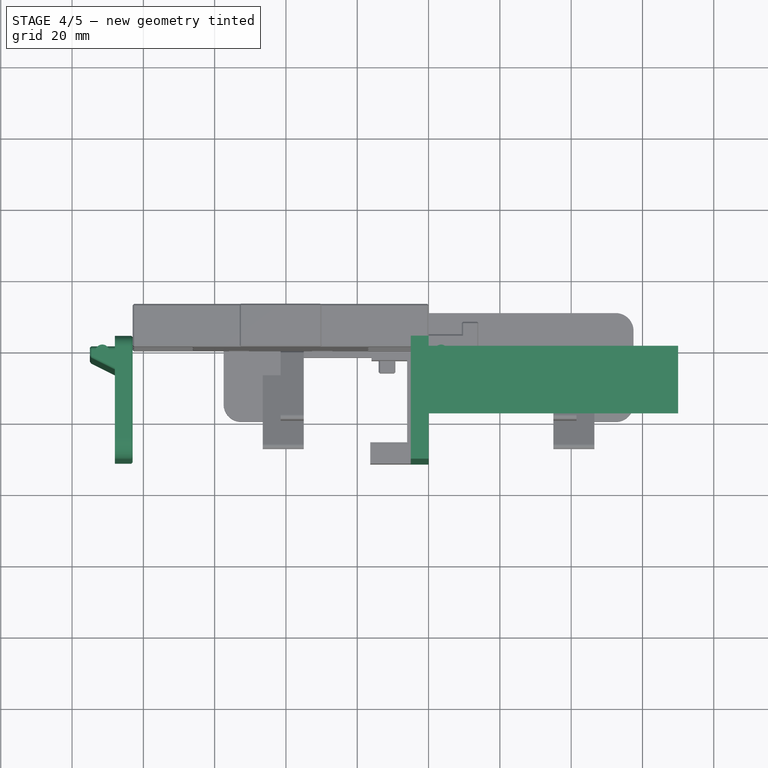
[diagram: stage 4 of 5 — top view after this stage's code; geometry added in this stage tinted green]
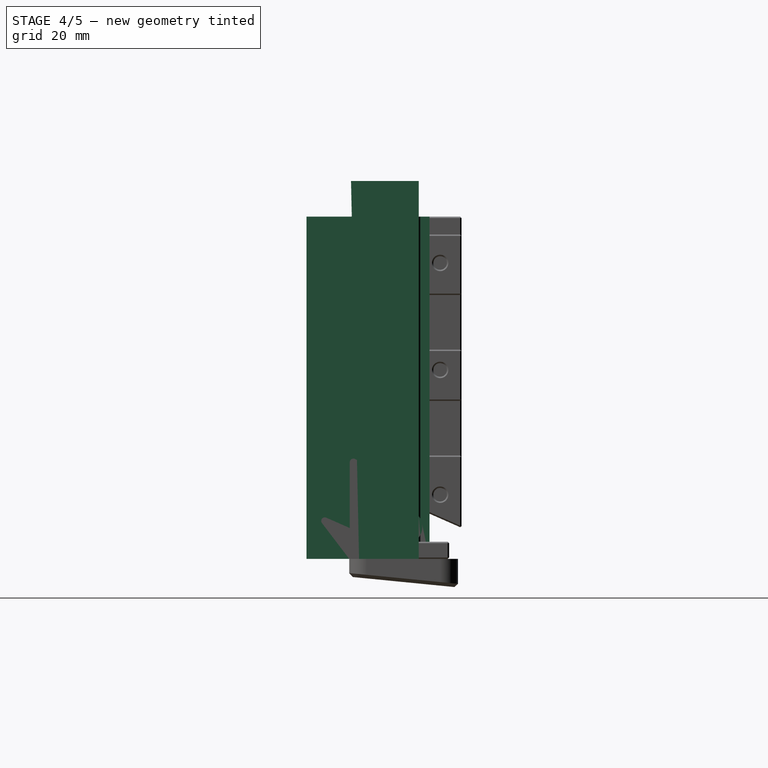
[diagram: stage 4 of 5 — right view after this stage's code; geometry added in this stage tinted green]
FEATURE [Sketcher::SketchObject] Sketch
  FullyConstrained = true
  MapMode = 5
  Support = -> [XY_Plane]
  sketch-geometry (8):
    g0: LineSegment StartX=0 StartY=0 StartZ=0 EndX=0 EndY=3 EndZ=0
    g1: LineSegment StartX=0 StartY=3 StartZ=0 EndX=-5 EndY=3 EndZ=0
    g2: LineSegment StartX=-5 StartY=3 StartZ=0 EndX=-5 EndY=-31.5 EndZ=0
    g3: LineSegment StartX=-5 StartY=-31.5 StartZ=0 EndX=0 EndY=-31.5 EndZ=0
    g4: LineSegment StartX=0 StartY=-31.5 StartZ=0 EndX=0 EndY=-6.5 EndZ=0
    g5: LineSegment StartX=0 StartY=-6.5 StartZ=0 EndX=7 EndY=-3 EndZ=0
    g6: LineSegment StartX=7 StartY=-3 StartZ=0 EndX=7 EndY=0 EndZ=0
    g7: LineSegment StartX=7 StartY=0 StartZ=0 EndX=0 EndY=0 EndZ=0
  constraints (23):
    c: Coincident(g-1,g0)
    c: PointOnObject(g0,g-2)
    c: Coincident(g0,g1)
    c: Horizontal(g1)
    c: Coincident(g1,g2)
    c: Vertical(g2)
    c: Coincident(g2,g3)
    c: PointOnObject(g3,g-2)
    c: Horizontal(g3)
    c: Coincident(g3,g4)
    c: PointOnObject(g4,g-2)
    c: Coincident(g4,g5)
    c: Coincident(g5,g6)
    c: PointOnObject(g6,g-1)
    c: Vertical(g6)
    c: Coincident(g6,g7)
    c: Coincident(g7,g0)
    c: DistanceY(g0,g0) = 3
    c: DistanceX(g7,g7) = 7
    c: DistanceY(g4,g0) = 6.5
    c: DistanceY(g6,g6) = 3
    c: DistanceY(g4,g4) = 25
    c: DistanceX(g1,g1) = 5
FEATURE [PartDesign::Pad] Pad
  Direction = (1,1,1)
  Length = 96
  Length2 = 100
  Profile = -> Sketch
  Type = 0
FEATURE [Sketcher::SketchObject] Sketch001
  FullyConstrained = true
  MapMode = 5
  Placement = pos=(0,0,96) rot=(0,0,1;0rad)
  Support = -> [Pad]
  sketch-geometry (1):
    g0: Circle CenterX=3.5 CenterY=-1.5 CenterZ=0 NormalX=0 NormalY=0 NormalZ=1 AngleXU=0 Radius=2
  constraints (3):
    c: DistanceX(g-1,g0) = 3.5
    c: Radius(g0) = 2
    c: DistanceY(g0,g-1) = 1.5
FEATURE [PartDesign::Pad] Pad001
  BaseFeature = -> Pad
  Direction = (1,1,1)
  Length = 10
  Length2 = 100
  Profile = -> Sketch001
  Refine = true
  Reversed = true
  Type = 3
  UpToFace = -> Pad [Face9]
FEATURE [Sketcher::SketchObject] Sketch002
  FullyConstrained = true
  MapMode = 5
  Placement = pos=(7,0,0) rot=(0.57735,0.57735,0.57735;2.0944rad)
  Support = -> [Pad001]
  sketch-geometry (2):
    g0: ArcOfCircle CenterX=-4 CenterY=9 CenterZ=0 NormalX=0 NormalY=0 NormalZ=1 AngleXU=0 Radius=5 StartAngle=5.63968 EndAngle=6.92669
    g1: LineSegment StartX=0 StartY=12 StartZ=0 EndX=-4e-16 EndY=6 EndZ=0
  constraints (7):
    c: PointOnObject(g0,g-2)
    c: PointOnObject(g0,g-2)
    c: DistanceY(g-1,g0) = 9
    c: DistanceY(g0,g0) = 6
    c: DistanceX(g0,g-1) = 4
    c: Coincident(g1,g0)
    c: Coincident(g1,g0)
FEATURE [PartDesign::Pad] Pad002
  BaseFeature = -> Pad001
  Direction = (1,1,1)
  Length = 10
  Length2 = 100
  Profile = -> Sketch002
  Reversed = true
  Type = 3
  UpToFace = -> Pad001 [Face1]
FEATURE [PartDesign::Body] Body  label="side"
  Group = -> [Sketch,Pad,Sketch001,Pad001,Sketch002,Pad002,Sketch003,Pocket,Sketch004,Pocket001,Sketch008,Pocket004,Sketch014,Pocket010,Sketch015,Pocket011,Fillet,Fillet001,Chamfer001,Fillet002,Chamfer002]
  Origin = -> Origin
  Placement = pos=(5,0,0) rot=(0,0,1;0rad)
  Tip = -> Chamfer002
FEATURE [Part::Feature] Body002
  Placement = pos=(5,0,0) rot=(0,0,1;0rad)
  shape: bbox 12.05 x 34.5 x 96 mm, 57 faces (baked)
FEATURE [Part::Mirroring] Part__Mirroring  label="Body002 (Mirror #1)"
  Base = (0,0,0)
  Normal = (1,0,0)
  Placement = pos=(-83,0,0) rot=(0,0,1;0rad)
  Source = -> Body002
FEATURE [Sketcher::SketchObject] Sketch024
  FullyConstrained = true
  MapMode = 5
  Placement = pos=(0,0,0) rot=(0.57735,0.57735,0.57735;2.0944rad)
  Support = -> [YZ_Plane003]
  sketch-geometry (4):
    g0: LineSegment StartX=0 StartY=0 StartZ=0 EndX=-16.75 EndY=0 EndZ=0
    g1: LineSegment StartX=-16.75 StartY=0 StartZ=0 EndX=-19 EndY=106 EndZ=0
    g2: LineSegment StartX=-19 StartY=106 StartZ=0 EndX=0 EndY=106 EndZ=0
    g3: LineSegment StartX=0 StartY=106 StartZ=0 EndX=0 EndY=0 EndZ=0
  constraints (11):
    c: Coincident(g-1,g0)
    c: PointOnObject(g0,g-1)
    c: Coincident(g0,g1)
    c: Coincident(g1,g2)
    c: PointOnObject(g2,g-2)
    c: Horizontal(g2)
    c: Coincident(g2,g3)
    c: Coincident(g3,g0)
    c: DistanceY(g3,g3) = 106
    c: DistanceX(g0,g0) = 16.75
    c: DistanceX(g2,g2) = 19
FEATURE [PartDesign::Pad] Pad007
  Direction = (1,1,1)
  Length = 70
  Length2 = 100
  Placement = pos=(0,0,0) rot=(0.57735,0.57735,0.57735;2.0944rad)
  Profile = -> Sketch024
  Type = 0
FEATURE [Sketcher::SketchObject] Sketch026
  FullyConstrained = false
  MapMode = 5
  Placement = pos=(0,12,-9.3e-15) rot=(-1,0,0;1.5708rad)
  Support = -> [Pad008]
  sketch-geometry (9):
    g0: LineSegment StartX=-55.65 StartY=-18 StartZ=0 EndX=-50.65 EndY=-18 EndZ=0
    g1: LineSegment StartX=-50.65 StartY=-18 StartZ=0 EndX=-50.65 EndY=-23 EndZ=0
    g2: LineSegment StartX=-50.65 StartY=-23 StartZ=0 EndX=-55.65 EndY=-23 EndZ=0
    g3: LineSegment StartX=-55.65 StartY=-23 StartZ=0 EndX=-55.65 EndY=-18 EndZ=0
    g4: LineSegment StartX=-32.35 StartY=-18 StartZ=0 EndX=-27.35 EndY=-18 EndZ=0
    g5: LineSegment StartX=-27.35 StartY=-18 StartZ=0 EndX=-27.35 EndY=-23 EndZ=0
    g6: LineSegment StartX=-27.35 StartY=-23 StartZ=0 EndX=-32.35 EndY=-23 EndZ=0
    g7: LineSegment StartX=-32.35 StartY=-23 StartZ=0 EndX=-32.35 EndY=-18 EndZ=0
    g8: GeomPoint X=-41.5 Y=-18.4879 Z=0
  constraints (25):
    c: Coincident(g0,g1)
    c: Coincident(g1,g2)
    c: Coincident(g2,g3)
    c: Coincident(g3,g0)
    c: Horizontal(g0)
    c: Horizontal(g2)
    c: Vertical(g1)
    c: Vertical(g3)
    c: Coincident(g4,g5)
    c: Coincident(g5,g6)
    c: Coincident(g6,g7)
    c: Coincident(g7,g4)
    c: Horizontal(g4)
    c: Horizontal(g6)
    c: Vertical(g5)
    c: Vertical(g7)
    c: Horizontal(g0,g4)
    c: Horizontal(g1,g6)
    c: DistanceY(g4,g-1) = 18
    c: DistanceX(g0,g4) = 18.3
    c: DistanceX(g8,g-1) = 41.5
    c: DistanceX(g0,g8) = 9.15
    c: DistanceX(g0,g0) = 5
    c: DistanceX(g4,g4) = 5
    c: DistanceY(g3,g3) = 5
FEATURE [PartDesign::Pocket] Pocket017
  BaseFeature = -> Pad008
  Length = 5
  Length2 = 100
  Placement = pos=(0,0,0) rot=(1,0,0;1.5708rad)
  Profile = -> Sketch026
  Type = 1
FEATURE [Sketcher::SketchObject] Sketch027
  ExternalGeometry = -> [Pocket017]
  FullyConstrained = true
  MapMode = 5
  Placement = pos=(0,12,-1.06e-14) rot=(-1,0,0;1.5708rad)
  Support = -> [Pocket017]
  sketch-geometry (4):
    g0: LineSegment StartX=-50.65 StartY=-18 StartZ=0 EndX=-32.35 EndY=-18 EndZ=0
    g1: LineSegment StartX=-32.35 StartY=-18 StartZ=0 EndX=-32.35 EndY=-23 EndZ=0
    g2: LineSegment StartX=-32.35 StartY=-23 StartZ=0 EndX=-50.65 EndY=-23 EndZ=0
    g3: LineSegment StartX=-50.65 StartY=-23 StartZ=0 EndX=-50.65 EndY=-18 EndZ=0
  constraints (10):
    c: Coincident(g0,g1)
    c: Coincident(g1,g2)
    c: Coincident(g2,g3)
    c: Coincident(g3,g0)
    c: Horizontal(g0)
    c: Horizontal(g2)
    c: Vertical(g1)
    c: Vertical(g3)
    c: Coincident(g0,g-3)
    c: Coincident(g1,g-4)
FEATURE [PartDesign::Pocket] Pocket018
  BaseFeature = -> Pocket017
  Length = 5.5
  Length2 = 100
  Placement = pos=(0,0,0) rot=(1,0,0;1.5708rad)
  Profile = -> Sketch027
  Type = 0
FEATURE [Sketcher::SketchObject] Sketch028
  FullyConstrained = true
  MapMode = 5
  Placement = pos=(-83,0,0) rot=(0.707107,0,-0.707107;3.14159rad)
  Support = -> [Pocket018]
  sketch-geometry (4):
    g0: LineSegment StartX=0 StartY=0 StartZ=0 EndX=-14 EndY=0 EndZ=0
    g1: LineSegment StartX=-14 StartY=0 StartZ=0 EndX=-3 EndY=-25 EndZ=0
    g2: LineSegment StartX=-3 StartY=-25 StartZ=0 EndX=0 EndY=-25 EndZ=0
    g3: LineSegment StartX=0 StartY=-25 StartZ=0 EndX=0 EndY=0 EndZ=0
  constraints (11):
    c: Coincident(g-1,g0)
    c: PointOnObject(g0,g-1)
    c: Coincident(g0,g1)
    c: Coincident(g1,g2)
    c: PointOnObject(g2,g-2)
    c: Horizontal(g2)
    c: Coincident(g2,g3)
    c: Coincident(g3,g0)
    c: DistanceX(g2,g2) = 3
    c: DistanceX(g0,g0) = 14
    c: DistanceY(g3,g3) = 25
FEATURE [PartDesign::Pocket] Pocket019
  BaseFeature = -> Pocket018
  Length = 5
  Length2 = 100
  Placement = pos=(0,0,0) rot=(1,0,0;1.5708rad)
  Profile = -> Sketch028
  Type = 1
FEATURE [PartDesign::Chamfer] Chamfer
  Angle = 45
  Base = -> Pocket019 [Face4,Face2,Face22,Face16,Face10,Face33,Face27,Face1,Face7]
  BaseFeature = -> Pocket019
  ChamferType = 0
  FlipDirection = false
  Placement = pos=(0,0,0) rot=(1,0,0;1.5708rad)
  Size = 0.4
  Size2 = 1
  SupportTransform = false
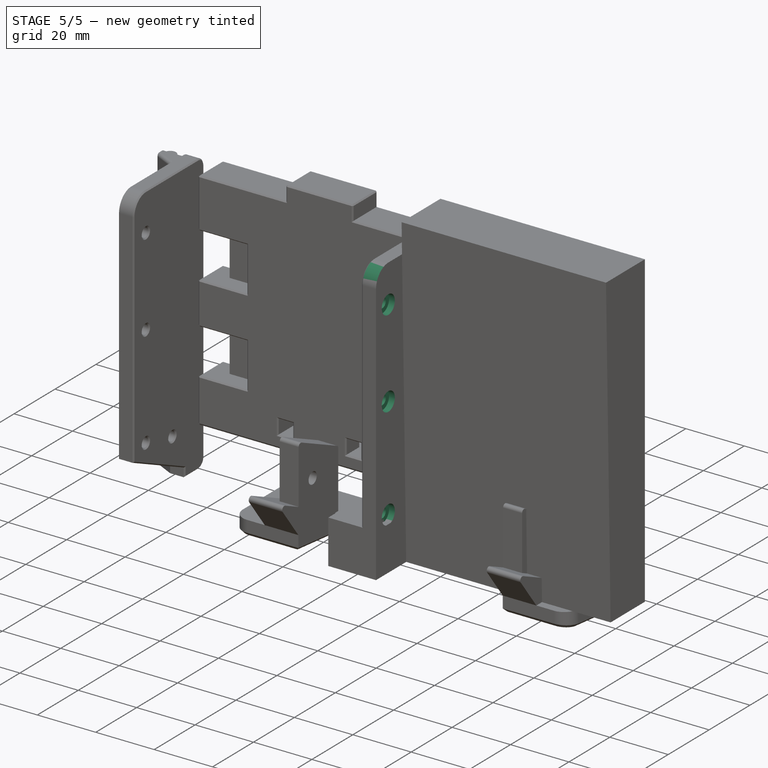
[diagram: stage 5 of 5 — iso view after this stage's code; geometry added in this stage tinted green]
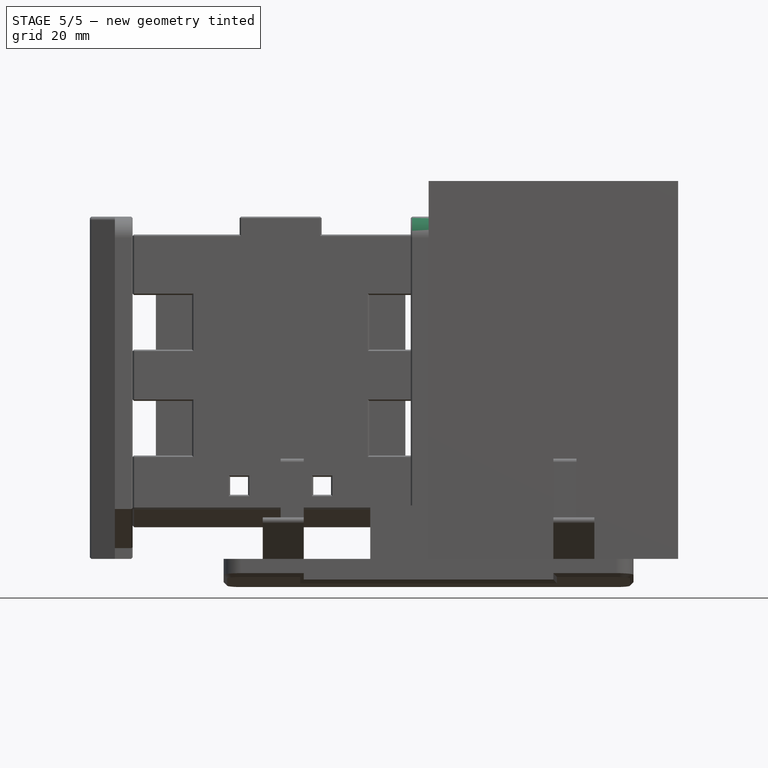
[diagram: stage 5 of 5 — front view after this stage's code; geometry added in this stage tinted green]
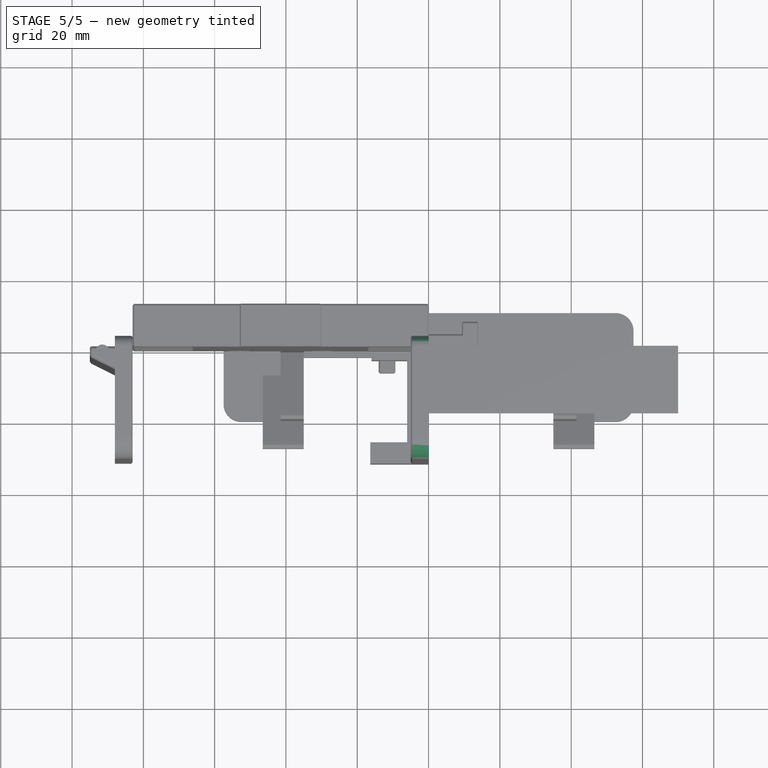
[diagram: stage 5 of 5 — top view after this stage's code; geometry added in this stage tinted green]
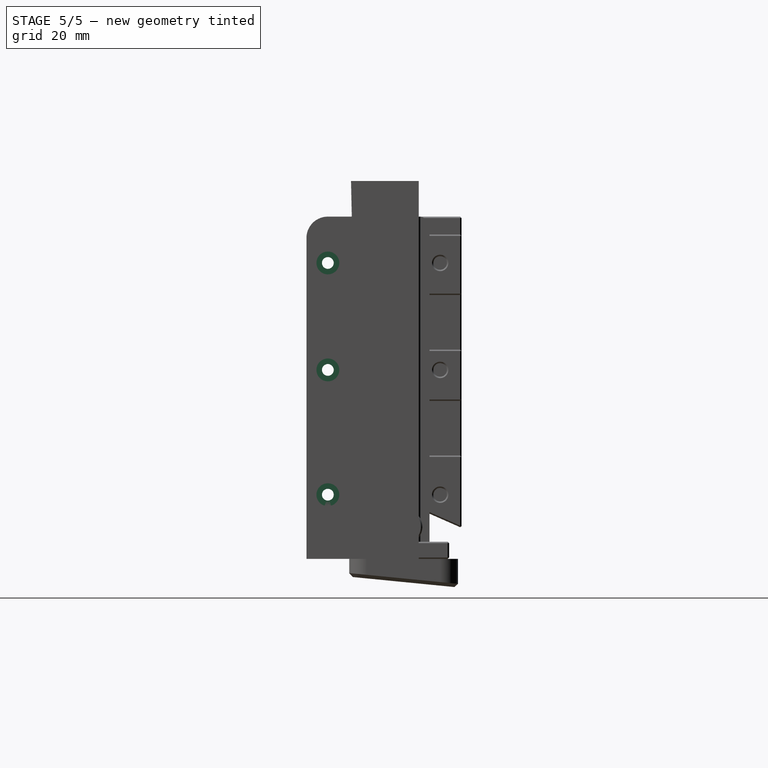
[diagram: stage 5 of 5 — right view after this stage's code; geometry added in this stage tinted green]
FEATURE [Sketcher::SketchObject] Sketch003
  ExternalGeometry = -> [Pad002]
  FullyConstrained = true
  MapMode = 5
  Placement = pos=(-5,0,0) rot=(0.57735,-0.57735,-0.57735;2.0944rad)
  Support = -> [Pad002]
  sketch-geometry (3):
    g0: Circle CenterX=25.5 CenterY=18 CenterZ=0 NormalX=0 NormalY=0 NormalZ=1 AngleXU=0 Radius=1.65
    g1: Circle CenterX=25.5 CenterY=53 CenterZ=0 NormalX=0 NormalY=0 NormalZ=1 AngleXU=0 Radius=1.65
    g2: Circle CenterX=25.5 CenterY=83 CenterZ=0 NormalX=0 NormalY=0 NormalZ=1 AngleXU=0 Radius=1.65
  constraints (9):
    c: Vertical(g2,g1)
    c: Vertical(g1,g0)
    c: DistanceX(g2,g-4) = 6
    c: DistanceY(g2,g-4) = 13
    c: DistanceY(g1,g2) = 30
    c: DistanceY(g0,g1) = 35
    c: Equal(g0,g1)
    c: Equal(g1,g2)
    c: Radius(g2) = 1.65
FEATURE [PartDesign::Pocket] Pocket
  BaseFeature = -> Pad002
  Length = 5
  Length2 = 100
  Profile = -> Sketch003
  Type = 1
FEATURE [Sketcher::SketchObject] Sketch004
  ExternalGeometry = -> [Pocket]
  FullyConstrained = true
  MapMode = 5
  Placement = pos=(0,0,0) rot=(0.57735,0.57735,0.57735;2.0944rad)
  Support = -> [Pocket]
  sketch-geometry (3):
    g0: Circle CenterX=-25.5 CenterY=83 CenterZ=0 NormalX=0 NormalY=0 NormalZ=1 AngleXU=0 Radius=3.2
    g1: Circle CenterX=-25.5 CenterY=53 CenterZ=0 NormalX=0 NormalY=0 NormalZ=1 AngleXU=0 Radius=3.2
    g2: Circle CenterX=-25.5 CenterY=18 CenterZ=0 NormalX=0 NormalY=0 NormalZ=1 AngleXU=0 Radius=3.2
  constraints (6):
    c: Coincident(g0,g-5)
    c: Coincident(g1,g-4)
    c: Coincident(g2,g-3)
    c: Equal(g2,g1)
    c: Equal(g1,g0)
    c: Radius(g0) = 3.2
FEATURE [PartDesign::Pocket] Pocket001
  BaseFeature = -> Pocket
  Length = 2
  Length2 = 100
  Profile = -> Sketch004
  Type = 0
FEATURE [Sketcher::SketchObject] Sketch008
  ExternalGeometry = -> [Pocket001]
  FullyConstrained = true
  MapMode = 5
  Placement = pos=(0,0,0) rot=(0.57735,0.57735,0.57735;2.0944rad)
  Support = -> [Pocket001]
  sketch-geometry (4):
    g0: LineSegment StartX=-31.5 StartY=0 StartZ=0 EndX=-31.5 EndY=14 EndZ=0
    g1: LineSegment StartX=-31.5 StartY=14 StartZ=0 EndX=-6.5 EndY=3 EndZ=0
    g2: LineSegment StartX=-6.5 StartY=3 StartZ=0 EndX=-6.5 EndY=0 EndZ=0
    g3: LineSegment StartX=-6.5 StartY=0 StartZ=0 EndX=-31.5 EndY=0 EndZ=0
  constraints (10):
    c: Coincident(g-3,g0)
    c: PointOnObject(g0,g-3)
    c: Coincident(g0,g1)
    c: PointOnObject(g1,g-4)
    c: Coincident(g1,g2)
    c: Coincident(g2,g-4)
    c: Coincident(g2,g3)
    c: Coincident(g3,g0)
    c: DistanceY(g0,g0) = 14
    c: DistanceY(g2,g2) = 3
FEATURE [PartDesign::Pocket] Pocket004
  BaseFeature = -> Pocket001
  Length = 5
  Length2 = 100
  Profile = -> Sketch008
  Type = 1
FEATURE [Sketcher::SketchObject] Sketch014
  FullyConstrained = true
  MapMode = 5
  Placement = pos=(0,0,0) rot=(0.57735,0.57735,0.57735;2.0944rad)
  Support = -> [Pocket004]
  sketch-geometry (1):
    g0: Circle CenterX=-12.5 CenterY=15 CenterZ=0 NormalX=0 NormalY=0 NormalZ=1 AngleXU=0 Radius=1.65
  constraints (3):
    c: DistanceX(g0,g-1) = 12.5
    c: DistanceY(g-1,g0) = 15
    c: Radius(g0) = 1.65
FEATURE [PartDesign::Pocket] Pocket010
  BaseFeature = -> Pocket004
  Length = 5
  Length2 = 100
  Profile = -> Sketch014
  Type = 1
FEATURE [Sketcher::SketchObject] Sketch015
  ExternalGeometry = -> [Pocket010]
  FullyConstrained = true
  MapMode = 5
  Placement = pos=(0,0,0) rot=(0.57735,0.57735,0.57735;2.0944rad)
  Support = -> [Pocket010]
  sketch-geometry (1):
    g0: Circle CenterX=-12.5 CenterY=15 CenterZ=0 NormalX=0 NormalY=0 NormalZ=1 AngleXU=0 Radius=3.2
  constraints (2):
    c: Coincident(g0,g-3)
    c: Radius(g0) = 3.2
FEATURE [PartDesign::Pocket] Pocket011
  BaseFeature = -> Pocket010
  Length = 2
  Length2 = 100
  Profile = -> Sketch015
  Type = 0
FEATURE [PartDesign::Fillet] Fillet
  Base = -> Pocket011 [Edge19]
  BaseFeature = -> Pocket011
  Radius = 6
  SupportTransform = false
FEATURE [PartDesign::Fillet] Fillet001
  Base = -> Fillet [Edge24,Edge3]
  BaseFeature = -> Fillet
  Radius = 3
  SupportTransform = false
FEATURE [PartDesign::Chamfer] Chamfer001
  Angle = 45
  Base = -> Fillet001 [Face2]
  BaseFeature = -> Fillet001
  ChamferType = 0
  FlipDirection = false
  Size = 0.4
  Size2 = 1
  SupportTransform = false
FEATURE [PartDesign::Fillet] Fillet002
  Base = -> Chamfer001 [Edge3,Edge7,Edge8]
  BaseFeature = -> Chamfer001
  Radius = 1
  Refine = true
  SupportTransform = false
FEATURE [PartDesign::Chamfer] Chamfer002
  Angle = 45
  Base = -> Fillet002 [Face49]
  BaseFeature = -> Fillet002
  ChamferType = 0
  FlipDirection = false
  Size = 0.4
  Size2 = 1
  SupportTransform = false
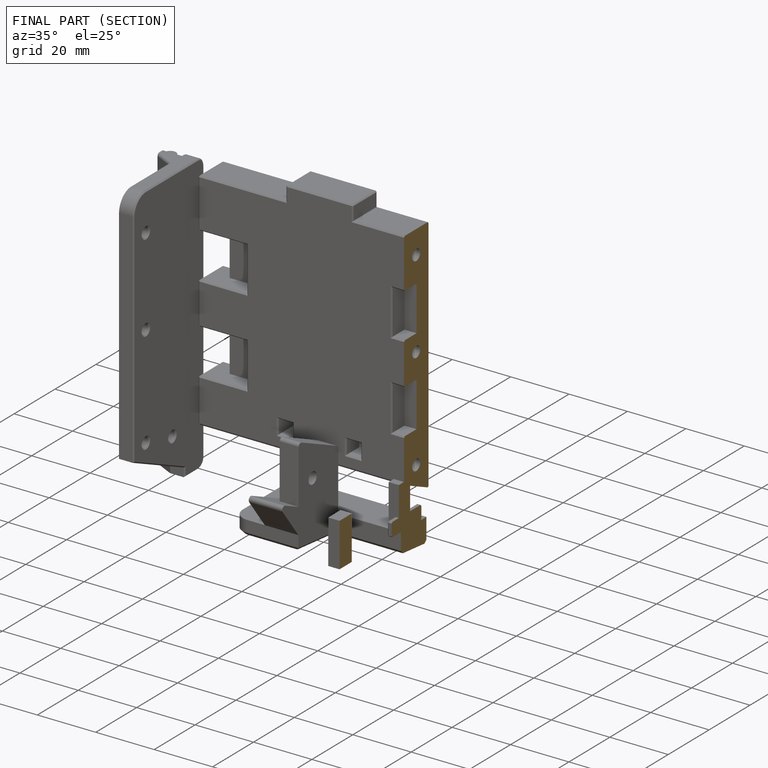
[diagram: finished part — half-section view (interior)]
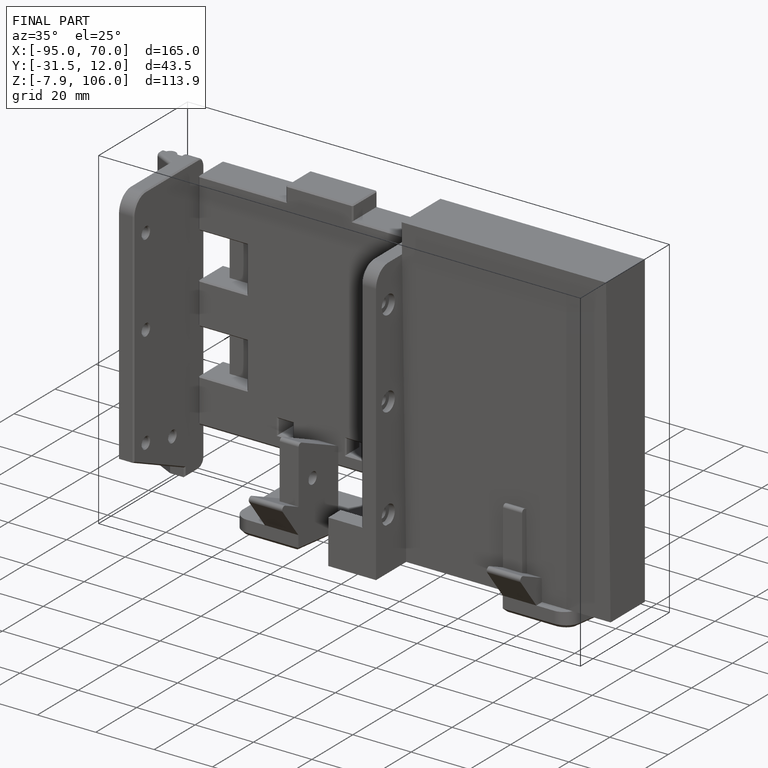
[diagram: finished part — iso view with bounding-box wireframe]
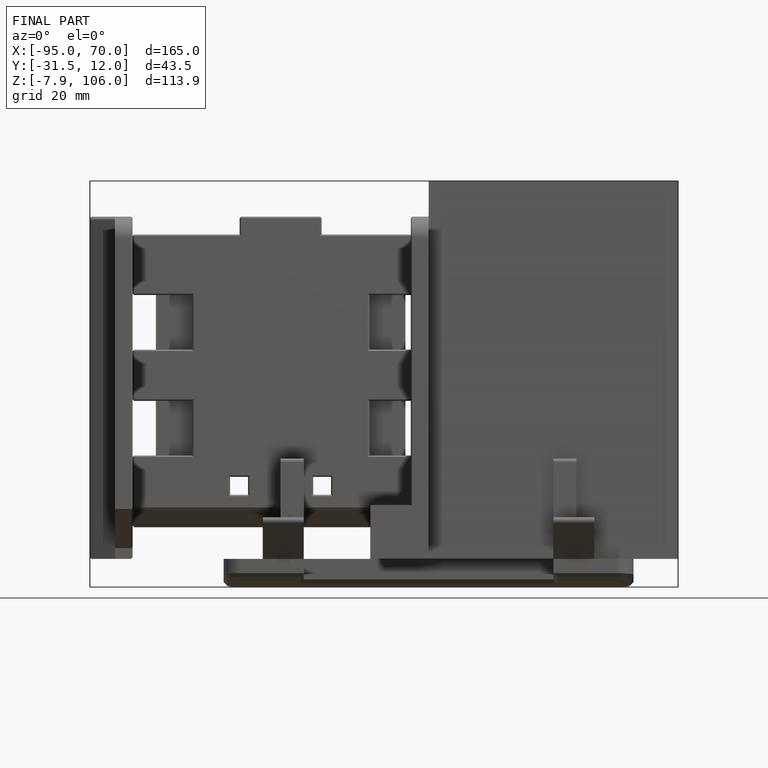
[diagram: finished part — front view with bounding-box wireframe]
